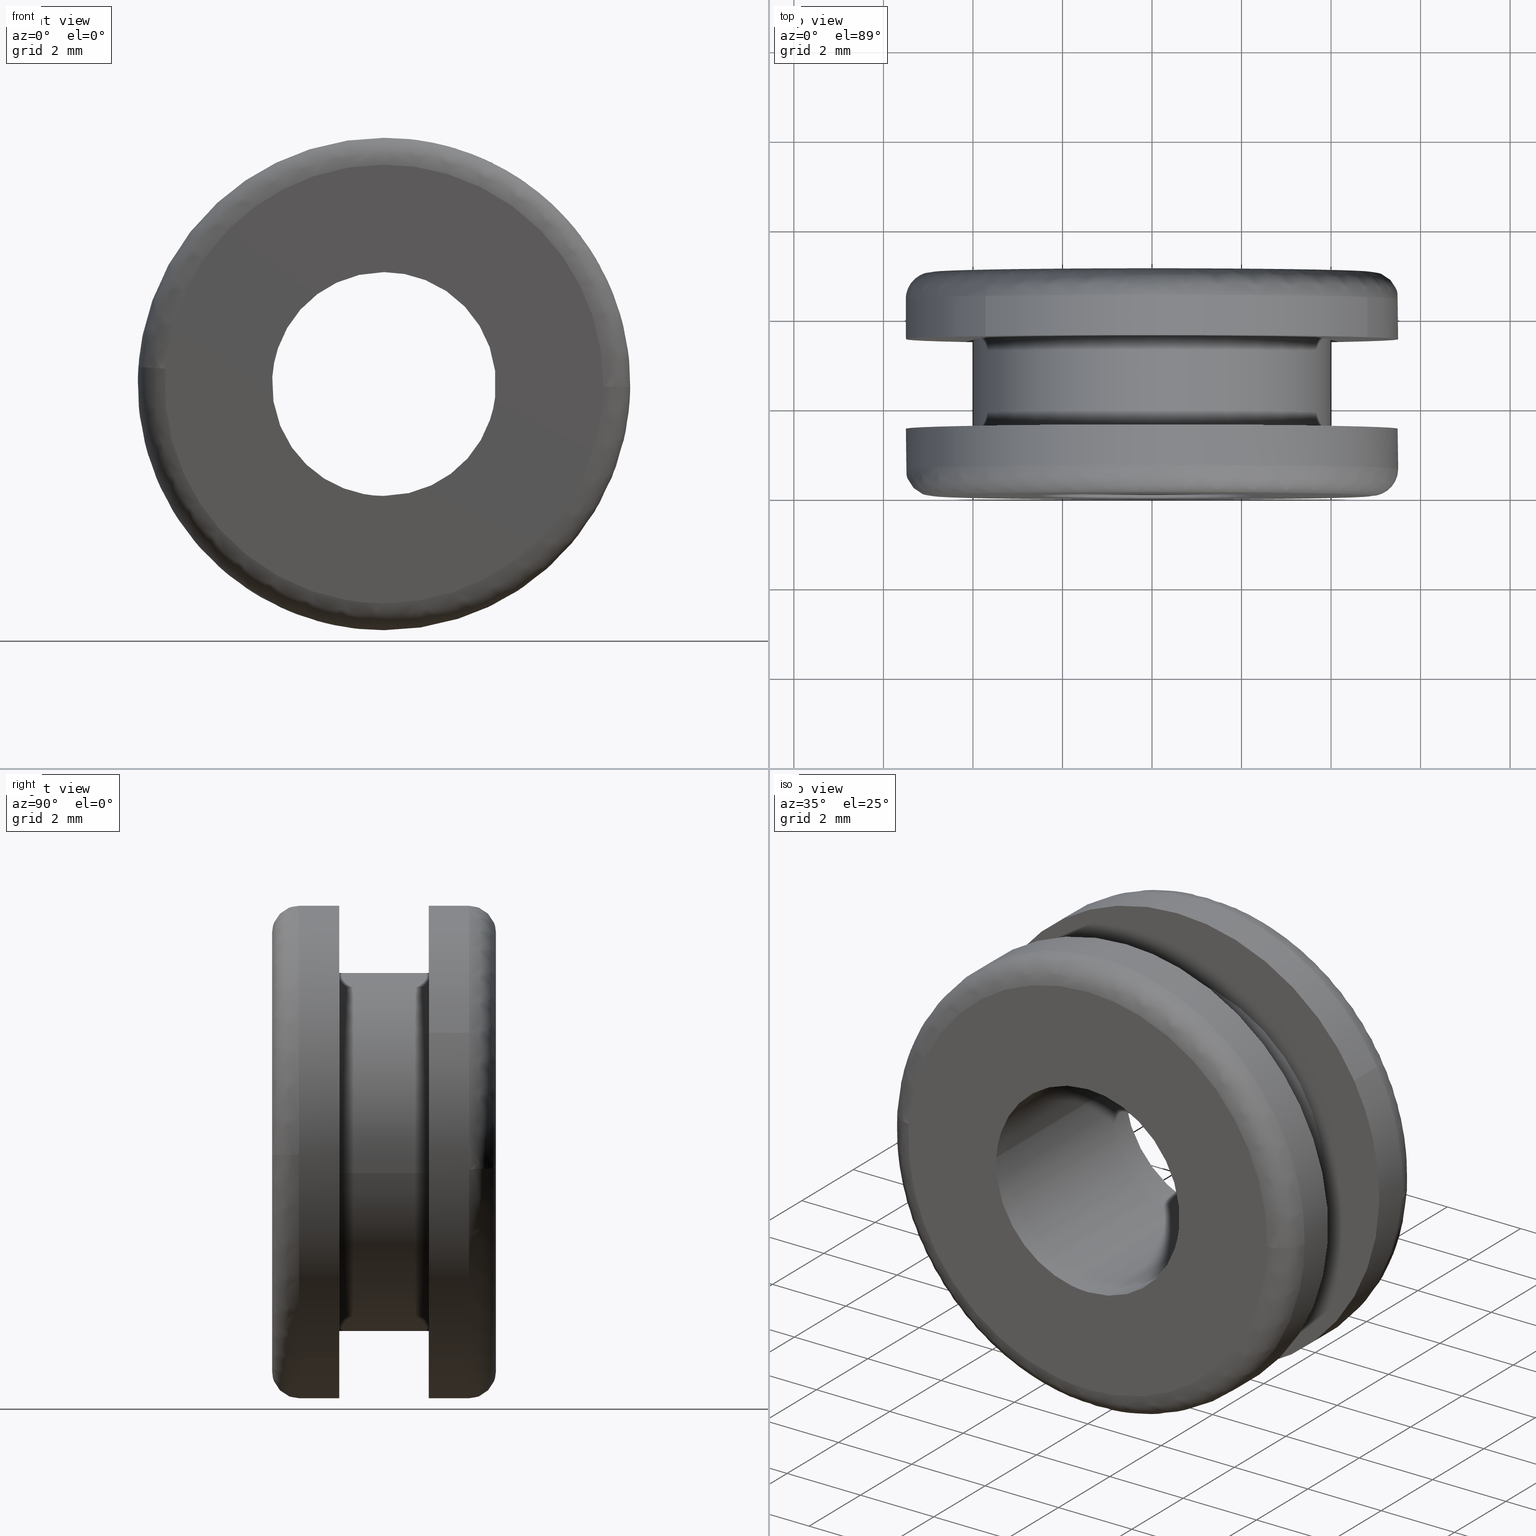
[diagram: canonical four-view strip — front | top / right | iso, engineering-drawing reading convention]
A machine part, canonical four-view strip (front | top / right | iso — engineering-drawing reading convention). The complete STEP part file that produces these views, byte-faithful:
ISO-10303-21;
HEADER;
/****************************************************************
 * Generated by software with PDE/Lib inside                    *
 * PDElib Version 4.4.1-0003, patched  Thursday August 19 11:58 *
 * International Technegroup Inc. (www.iti-oh.com)              *
 ****************************************************************/
FILE_DESCRIPTION((''),'2;1');
FILE_NAME('','2005-12-14T14:18:10',(''),(''),'','CADfix','');
FILE_SCHEMA(('AUTOMOTIVE_DESIGN'));
ENDSEC;
DATA;
#5=APPLICATION_CONTEXT('automotive design');
#6=APPLICATION_PROTOCOL_DEFINITION('Draft International Standard','automotive_design',1998,#5);
#7=PRODUCT_CONTEXT('None',#5,'mechanical');
#8=PRODUCT('grommet','','None',(#7));
#9=PRODUCT_RELATED_PRODUCT_CATEGORY('part','description',(#8));
#10=PRODUCT_DEFINITION_FORMATION('None','None',#8);
#11=PRODUCT_DEFINITION_CONTEXT('part definition',#5,'design');
#12=PRODUCT_DEFINITION('None','None',#10,#11);
#18=(NAMED_UNIT(*)PLANE_ANGLE_UNIT()SI_UNIT($,.RADIAN.));
#19=DIMENSIONAL_EXPONENTS(0.0,0.0,0.0,0.0,0.0,0.0,0.0);
#20=PLANE_ANGLE_MEASURE_WITH_UNIT(PLANE_ANGLE_MEASURE(0.017453292500000),#18);
#24=(CONVERSION_BASED_UNIT('DEGREE',#20)NAMED_UNIT(#19)PLANE_ANGLE_UNIT());
#28=(NAMED_UNIT(*)SI_UNIT($,.STERADIAN.)SOLID_ANGLE_UNIT());
#32=(LENGTH_UNIT()NAMED_UNIT(*)SI_UNIT(.MILLI.,.METRE.));
#34=UNCERTAINTY_MEASURE_WITH_UNIT(LENGTH_MEASURE(0.001000000000000),#32,'DISTANCE_ACCURACY_VALUE','');
#36=(GEOMETRIC_REPRESENTATION_CONTEXT(3)GLOBAL_UNCERTAINTY_ASSIGNED_CONTEXT((#34))GLOBAL_UNIT_ASSIGNED_CONTEXT((#24,#28,#32))REPRESENTATION_CONTEXT('None','None'));
#37=AXIS2_PLACEMENT_3D('',#38,#39,#40);
#38=CARTESIAN_POINT('',(0.0,0.0,0.0));
#39=DIRECTION('',(0.0,0.0,1.0));
#40=DIRECTION('',(1.0,0.0,0.0));
#41=ADVANCED_BREP_SHAPE_REPRESENTATION('',(#37,#1233),#36);
#42=PRODUCT_DEFINITION_SHAPE('','',#12);
#43=SHAPE_DEFINITION_REPRESENTATION(#42,#41);
#44=CARTESIAN_POINT('',(2.985008738409040,1.522500000000269,-4.619493785213013));
#45=CARTESIAN_POINT('',(3.252596745929994,1.522500000000269,-4.446584679176262));
#46=CARTESIAN_POINT('',(3.498430211527701,1.522500000000269,-4.243935208632458));
#47=CARTESIAN_POINT('',(7.742365420160159,1.522500000000269,-0.745504997104758));
#48=CARTESIAN_POINT('',(4.243935208632458,1.522500000000269,3.498430211527701));
#49=CARTESIAN_POINT('',(0.745504997104758,1.522500000000269,7.742365420160159));
#50=CARTESIAN_POINT('',(-3.498430211527701,1.522500000000269,4.243935208632458));
#51=CARTESIAN_POINT('',(-7.742365420160159,1.522500000000269,0.745504997104758));
#52=CARTESIAN_POINT('',(-4.243935208632458,1.522500000000269,-3.498430211527701));
#53=CARTESIAN_POINT('',(2.985008738409040,0.576937499988974,-4.619493785213013));
#54=CARTESIAN_POINT('',(3.252596745929994,0.576937499988974,-4.446584679176262));
#55=CARTESIAN_POINT('',(3.498430211527701,0.576937499988974,-4.243935208632458));
#56=CARTESIAN_POINT('',(7.742365420160159,0.576937499988974,-0.745504997104758));
#57=CARTESIAN_POINT('',(4.243935208632458,0.576937499988974,3.498430211527701));
#58=CARTESIAN_POINT('',(0.745504997104758,0.576937499988974,7.742365420160159));
#59=CARTESIAN_POINT('',(-3.498430211527701,0.576937499988974,4.243935208632458));
#60=CARTESIAN_POINT('',(-7.742365420160159,0.576937499988974,0.745504997104758));
#61=CARTESIAN_POINT('',(-4.243935208632458,0.576937499988974,-3.498430211527701));
#69=(BOUNDED_SURFACE()B_SPLINE_SURFACE(2,1,((#44,#53),(#45,#54),(#46,#55),(#47,#56),(#48,#57),(#49,#58),(#50,#59),(#51,#60),(#52,#61)),.UNSPECIFIED.,.F.,.F.,.U.)B_SPLINE_SURFACE_WITH_KNOTS((3,2,2,2,3),(2,2),(0.0,0.729015869776647,9.841714241984734,18.954412614192830,28.067110986400909),(0.0,1.0),.UNSPECIFIED.)GEOMETRIC_REPRESENTATION_ITEM()RATIONAL_B_SPLINE_SURFACE(((0.956886118190660,0.956886118190660),(0.976568542494924,0.976568542494924),(1.0,1.0),(0.707106781186548,0.707106781186548),(1.0,1.0),(0.707106781186548,0.707106781186548),(1.0,1.0),(0.707106781186548,0.707106781186548),(1.0,1.0)))REPRESENTATION_ITEM('')SURFACE());
#70=CARTESIAN_POINT('',(2.985007899875340,0.599999999998220,-4.619494327053410));
#71=VERTEX_POINT('',#70);
#72=CARTESIAN_POINT('',(5.499565743120951,0.599999999989269,-0.069113219361360));
#73=VERTEX_POINT('',#72);
#74=CARTESIAN_POINT('',(2.985007899875340,0.599999999998220,-4.619494327053409));
#75=CARTESIAN_POINT('',(5.462499466198922,0.599999999995085,-3.018598551696828));
#76=CARTESIAN_POINT('',(5.499565743120951,0.599999999989269,-0.069113219361360));
#84=(BOUNDED_CURVE()B_SPLINE_CURVE(2,(#74,#75,#76),.UNSPECIFIED.,.F.,.U.)B_SPLINE_CURVE_WITH_KNOTS((3,3),(0.092934687548090,0.247784295921542),.UNSPECIFIED.)CURVE()GEOMETRIC_REPRESENTATION_ITEM()RATIONAL_B_SPLINE_CURVE((0.863190132936235,0.816652436475567,0.994854295643583))REPRESENTATION_ITEM(''));
#85=EDGE_CURVE('',#71,#73,#84,.T.);
#86=ORIENTED_EDGE('',*,*,#85,.F.);
#87=CARTESIAN_POINT('',(2.985007905691947,1.500000000000000,-4.619494323295093));
#88=VERTEX_POINT('',#87);
#89=CARTESIAN_POINT('',(2.985007905691947,1.500000000000000,-4.619494323295093));
#90=CARTESIAN_POINT('',(2.985007899875340,0.599999999998220,-4.619494327053410));
#91=QUASI_UNIFORM_CURVE('',1,(#89,#90),.UNSPECIFIED.,.F.,.U.);
#92=EDGE_CURVE('',#88,#71,#91,.T.);
#93=ORIENTED_EDGE('',*,*,#92,.F.);
#94=CARTESIAN_POINT('',(0.0,1.500000000000000,5.500000000000000));
#95=VERTEX_POINT('',#94);
#96=CARTESIAN_POINT('',(2.985007905691948,1.500000000000000,-4.619494323295093));
#97=CARTESIAN_POINT('',(5.500000000000000,1.500000000000001,-2.994366594990551));
#98=CARTESIAN_POINT('',(5.500000000000000,1.500000000000000,-1.928755E-016));
#99=CARTESIAN_POINT('',(5.500000000000001,1.500000000000000,5.500000000000001));
#100=CARTESIAN_POINT('',(0.0,1.500000000000000,5.500000000000000));
#108=(BOUNDED_CURVE()B_SPLINE_CURVE(2,(#96,#97,#98,#99,#100),.UNSPECIFIED.,.F.,.U.)B_SPLINE_CURVE_WITH_KNOTS((3,2,3),(0.092934687932361,0.250000000000000,0.500000000000000),.UNSPECIFIED.)CURVE()GEOMETRIC_REPRESENTATION_ITEM()RATIONAL_B_SPLINE_CURVE((0.863190132705262,0.815986540738279,1.0,0.707106781186548,1.0))REPRESENTATION_ITEM(''));
#109=EDGE_CURVE('',#88,#95,#108,.T.);
#110=ORIENTED_EDGE('',*,*,#109,.T.);
#111=CARTESIAN_POINT('',(-4.243935634971063,1.500000000000000,-3.498429694337490));
#112=VERTEX_POINT('',#111);
#113=CARTESIAN_POINT('',(0.0,1.500000000000000,5.500000000000000));
#114=CARTESIAN_POINT('',(-5.500000000000001,1.500000000000000,5.500000000000001));
#115=CARTESIAN_POINT('',(-5.500000000000000,1.500000000000000,-1.928755E-016));
#116=CARTESIAN_POINT('',(-5.500000000000000,1.500000000000000,-1.974701019510161));
#117=CARTESIAN_POINT('',(-4.243935634971063,1.500000000000000,-3.498429694337489));
#125=(BOUNDED_CURVE()B_SPLINE_CURVE(2,(#113,#114,#115,#116,#117),.UNSPECIFIED.,.F.,.U.)B_SPLINE_CURVE_WITH_KNOTS((3,2,3),(0.500000000000000,0.750000000000000,0.860504588998465),.UNSPECIFIED.)CURVE()GEOMETRIC_REPRESENTATION_ITEM()RATIONAL_B_SPLINE_CURVE((1.0,0.707106781186548,1.0,0.870535820938328,0.855522729054526))REPRESENTATION_ITEM(''));
#126=EDGE_CURVE('',#95,#112,#125,.T.);
#127=ORIENTED_EDGE('',*,*,#126,.T.);
#128=CARTESIAN_POINT('',(-4.243935646368156,0.599999999999966,-3.498429680511704));
#129=VERTEX_POINT('',#128);
#130=CARTESIAN_POINT('',(-4.243935634971063,1.500000000000000,-3.498429694337490));
#131=CARTESIAN_POINT('',(-4.243935646368156,0.599999999999966,-3.498429680511704));
#132=QUASI_UNIFORM_CURVE('',1,(#130,#131),.UNSPECIFIED.,.F.,.U.);
#133=EDGE_CURVE('',#112,#129,#132,.T.);
#134=ORIENTED_EDGE('',*,*,#133,.T.);
#135=CARTESIAN_POINT('',(-5.486611206122207,0.599999999989249,0.383532883667368));
#136=VERTEX_POINT('',#135);
#137=CARTESIAN_POINT('',(-5.486611206122207,0.599999999989249,0.383532883667368));
#138=CARTESIAN_POINT('',(-5.500000000000000,0.599999999999979,0.192000137313359));
#139=CARTESIAN_POINT('',(-5.500000000000000,0.599999999999979,-1.928755E-016));
#140=CARTESIAN_POINT('',(-5.500000000000000,0.599999999999979,-1.974700999282679));
#141=CARTESIAN_POINT('',(-4.243935646368156,0.599999999999966,-3.498429680511704));
#149=(BOUNDED_CURVE()B_SPLINE_CURVE(2,(#137,#138,#139,#140,#141),.UNSPECIFIED.,.F.,.U.)B_SPLINE_CURVE_WITH_KNOTS((3,2,3),(0.737833686534982,0.750000000000000,0.860504588013077),.UNSPECIFIED.)CURVE()GEOMETRIC_REPRESENTATION_ITEM()RATIONAL_B_SPLINE_CURVE((0.972879876386744,0.985746277152549,1.0,0.870535822092782,0.855522729322274))REPRESENTATION_ITEM(''));
#150=EDGE_CURVE('',#136,#129,#149,.T.);
#151=ORIENTED_EDGE('',*,*,#150,.F.);
#152=CARTESIAN_POINT('',(0.0,0.599999999999979,5.500000000000000));
#153=VERTEX_POINT('',#152);
#154=CARTESIAN_POINT('',(0.0,0.599999999999979,5.500000000000000));
#155=CARTESIAN_POINT('',(-5.128952659961872,0.599999999999979,5.500000000000001));
#156=CARTESIAN_POINT('',(-5.486611206122207,0.599999999989249,0.383532883667368));
#164=(BOUNDED_CURVE()B_SPLINE_CURVE(2,(#154,#155,#156),.UNSPECIFIED.,.F.,.U.)B_SPLINE_CURVE_WITH_KNOTS((3,3),(0.500000000000000,0.737833686534983),.UNSPECIFIED.)CURVE()GEOMETRIC_REPRESENTATION_ITEM()RATIONAL_B_SPLINE_CURVE((1.0,0.721360504033997,0.972879876386746))REPRESENTATION_ITEM(''));
#165=EDGE_CURVE('',#153,#136,#164,.T.);
#166=ORIENTED_EDGE('',*,*,#165,.F.);
#167=CARTESIAN_POINT('',(5.499565743120951,0.599999999989269,-0.069113219361360));
#168=CARTESIAN_POINT('',(5.500000000000001,0.599999999999979,-0.034557973958315));
#169=CARTESIAN_POINT('',(5.500000000000000,0.599999999999979,-1.928755E-016));
#170=CARTESIAN_POINT('',(5.500000000000001,0.599999999999979,5.500000000000001));
#171=CARTESIAN_POINT('',(0.0,0.599999999999979,5.500000000000000));
#179=(BOUNDED_CURVE()B_SPLINE_CURVE(2,(#167,#168,#169,#170,#171),.UNSPECIFIED.,.F.,.U.)B_SPLINE_CURVE_WITH_KNOTS((3,2,3),(0.247784295921541,0.250000000000000,0.500000000000000),.UNSPECIFIED.)CURVE()GEOMETRIC_REPRESENTATION_ITEM()RATIONAL_B_SPLINE_CURVE((0.994854295643582,0.997404141202089,1.0,0.707106781186548,1.0))REPRESENTATION_ITEM(''));
#180=EDGE_CURVE('',#73,#153,#179,.T.);
#181=ORIENTED_EDGE('',*,*,#180,.F.);
#182=EDGE_LOOP('',(#86,#93,#110,#127,#134,#151,#166,#181));
#183=FACE_OUTER_BOUND('',#182,.T.);
#184=ADVANCED_FACE('',(#183),#69,.T.);
#185=CARTESIAN_POINT('',(-4.243935208632458,1.522500000000269,-3.498430211527701));
#186=CARTESIAN_POINT('',(-1.128612139344792,1.522500000000270,-7.277619293662170));
#187=CARTESIAN_POINT('',(2.985008738409040,1.522500000000269,-4.619493785213013));
#188=CARTESIAN_POINT('',(-4.243935208632458,0.576937499988974,-3.498430211527701));
#189=CARTESIAN_POINT('',(-1.128612139344792,0.576937499988974,-7.277619293662170));
#190=CARTESIAN_POINT('',(2.985008738409040,0.576937499988974,-4.619493785213013));
#198=(BOUNDED_SURFACE()B_SPLINE_SURFACE(2,1,((#185,#188),(#186,#189),(#187,#190)),.UNSPECIFIED.,.F.,.F.,.U.)B_SPLINE_SURFACE_WITH_KNOTS((3,3),(2,2),(0.0,8.374486759889559),(0.0,1.0),.UNSPECIFIED.)GEOMETRIC_REPRESENTATION_ITEM()RATIONAL_B_SPLINE_SURFACE(((1.0,1.0),(0.730538238691624,0.730538238691624),(0.956886118190660,0.956886118190660)))REPRESENTATION_ITEM('')SURFACE());
#199=CARTESIAN_POINT('',(0.0,0.599999999999979,-5.500000000000000));
#200=VERTEX_POINT('',#199);
#201=CARTESIAN_POINT('',(0.0,0.599999999999979,-5.500000000000000));
#202=CARTESIAN_POINT('',(1.622367425457560,0.599999999999979,-5.500000000000000));
#203=CARTESIAN_POINT('',(2.985007899875340,0.599999999998220,-4.619494327053409));
#211=(BOUNDED_CURVE()B_SPLINE_CURVE(2,(#201,#202,#203),.UNSPECIFIED.,.F.,.U.)B_SPLINE_CURVE_WITH_KNOTS((3,3),(0.0,0.092934687548090),.UNSPECIFIED.)CURVE()GEOMETRIC_REPRESENTATION_ITEM()RATIONAL_B_SPLINE_CURVE((1.0,0.891120240898469,0.863190132936235))REPRESENTATION_ITEM(''));
#212=EDGE_CURVE('',#200,#71,#211,.T.);
#213=ORIENTED_EDGE('',*,*,#212,.F.);
#214=CARTESIAN_POINT('',(-4.243935646368156,0.599999999999966,-3.498429680511704));
#215=CARTESIAN_POINT('',(-2.593969244496337,0.599999999999979,-5.500000000000001));
#216=CARTESIAN_POINT('',(0.0,0.599999999999979,-5.500000000000000));
#224=(BOUNDED_CURVE()B_SPLINE_CURVE(2,(#214,#215,#216),.UNSPECIFIED.,.F.,.U.)B_SPLINE_CURVE_WITH_KNOTS((3,3),(0.860504588013076,1.0),.UNSPECIFIED.)CURVE()GEOMETRIC_REPRESENTATION_ITEM()RATIONAL_B_SPLINE_CURVE((0.855522729322274,0.836570959093765,1.0))REPRESENTATION_ITEM(''));
#225=EDGE_CURVE('',#129,#200,#224,.T.);
#226=ORIENTED_EDGE('',*,*,#225,.F.);
#227=ORIENTED_EDGE('',*,*,#133,.F.);
#228=CARTESIAN_POINT('',(0.0,1.500000000000000,-5.500000000000000));
#229=VERTEX_POINT('',#228);
#230=CARTESIAN_POINT('',(-4.243935634971063,1.500000000000000,-3.498429694337489));
#231=CARTESIAN_POINT('',(-2.593969222593032,1.500000000000000,-5.500000000000002));
#232=CARTESIAN_POINT('',(0.0,1.500000000000000,-5.500000000000000));
#240=(BOUNDED_CURVE()B_SPLINE_CURVE(2,(#230,#231,#232),.UNSPECIFIED.,.F.,.U.)B_SPLINE_CURVE_WITH_KNOTS((3,3),(0.860504588998465,1.0),.UNSPECIFIED.)CURVE()GEOMETRIC_REPRESENTATION_ITEM()RATIONAL_B_SPLINE_CURVE((0.855522729054526,0.836570960248220,1.0))REPRESENTATION_ITEM(''));
#241=EDGE_CURVE('',#112,#229,#240,.T.);
#242=ORIENTED_EDGE('',*,*,#241,.T.);
#243=CARTESIAN_POINT('',(0.0,1.500000000000000,-5.500000000000000));
#244=CARTESIAN_POINT('',(1.622367432985426,1.500000000000000,-5.500000000000001));
#245=CARTESIAN_POINT('',(2.985007905691948,1.500000000000000,-4.619494323295093));
#253=(BOUNDED_CURVE()B_SPLINE_CURVE(2,(#243,#244,#245),.UNSPECIFIED.,.F.,.U.)B_SPLINE_CURVE_WITH_KNOTS((3,3),(0.0,0.092934687932361),.UNSPECIFIED.)CURVE()GEOMETRIC_REPRESENTATION_ITEM()RATIONAL_B_SPLINE_CURVE((1.0,0.891120240448269,0.863190132705262))REPRESENTATION_ITEM(''));
#254=EDGE_CURVE('',#229,#88,#253,.T.);
#255=ORIENTED_EDGE('',*,*,#254,.T.);
#256=ORIENTED_EDGE('',*,*,#92,.T.);
#257=EDGE_LOOP('',(#213,#226,#227,#242,#255,#256));
#258=FACE_OUTER_BOUND('',#257,.T.);
#259=ADVANCED_FACE('',(#258),#198,.T.);
#260=CARTESIAN_POINT('',(3.972038105454666,3.550000000000000,-0.472136938627034));
#261=CARTESIAN_POINT('',(3.985550461794422,3.550000000000001,-0.358458914551911));
#262=CARTESIAN_POINT('',(3.992539193687467,3.550000000000000,-0.244194158139428));
#263=CARTESIAN_POINT('',(4.236733351826894,3.550000000000000,3.748345035548039));
#264=CARTESIAN_POINT('',(0.244194158139428,3.550000000000000,3.992539193687467));
#265=CARTESIAN_POINT('',(-3.748345035548039,3.550000000000000,4.236733351826894));
#266=CARTESIAN_POINT('',(-3.992539193687467,3.550000000000000,0.244194158139428));
#267=CARTESIAN_POINT('',(3.972038105454666,1.448750000000000,-0.472136938627034));
#268=CARTESIAN_POINT('',(3.985550461794422,1.448750000000000,-0.358458914551911));
#269=CARTESIAN_POINT('',(3.992539193687467,1.448750000000000,-0.244194158139428));
#270=CARTESIAN_POINT('',(4.236733351826894,1.448750000000000,3.748345035548039));
#271=CARTESIAN_POINT('',(0.244194158139428,1.448750000000000,3.992539193687467));
#272=CARTESIAN_POINT('',(-3.748345035548039,1.448750000000000,4.236733351826894));
#273=CARTESIAN_POINT('',(-3.992539193687467,1.448750000000000,0.244194158139428));
#281=(BOUNDED_SURFACE()B_SPLINE_SURFACE(2,1,((#260,#267),(#261,#268),(#262,#269),(#263,#270),(#264,#271),(#265,#272),(#266,#273)),.UNSPECIFIED.,.F.,.F.,.U.)B_SPLINE_SURFACE_WITH_KNOTS((3,2,2,3),(2,2),(0.0,0.265096679918781,6.892513677888300,13.519930675857820),(0.0,2.101250000000000),.UNSPECIFIED.)GEOMETRIC_REPRESENTATION_ITEM()RATIONAL_B_SPLINE_SURFACE(((0.977505800795127,0.977505800795127),(0.988284271247462,0.988284271247462),(1.0,1.0),(0.707106781186548,0.707106781186548),(1.0,1.0),(0.707106781186548,0.707106781186548),(1.0,1.0)))REPRESENTATION_ITEM('')SURFACE());
#282=CARTESIAN_POINT('',(3.972038520572323,1.499999999999971,-0.472133446259905));
#283=VERTEX_POINT('',#282);
#284=CARTESIAN_POINT('',(0.0,1.500000000000000,4.0));
#285=VERTEX_POINT('',#284);
#286=CARTESIAN_POINT('',(3.972038520572323,1.499999999999971,-0.472133446259905));
#287=CARTESIAN_POINT('',(4.000000000000001,1.500000000000000,-0.236894713963877));
#288=CARTESIAN_POINT('',(4.0,1.500000000000000,-1.928755E-016));
#289=CARTESIAN_POINT('',(4.000000000000000,1.500000000000000,4.000000000000000));
#290=CARTESIAN_POINT('',(0.0,1.500000000000000,4.0));
#298=(BOUNDED_CURVE()B_SPLINE_CURVE(2,(#286,#287,#288,#289,#290),.UNSPECIFIED.,.F.,.U.)B_SPLINE_CURVE_WITH_KNOTS((3,2,3),(0.229562622109743,0.250000000000000,0.500000000000000),.UNSPECIFIED.)CURVE()GEOMETRIC_REPRESENTATION_ITEM()RATIONAL_B_SPLINE_CURVE((0.956027045438608,0.976056122422463,1.0,0.707106781186548,1.0))REPRESENTATION_ITEM(''));
#299=EDGE_CURVE('',#283,#285,#298,.T.);
#300=ORIENTED_EDGE('',*,*,#299,.F.);
#301=CARTESIAN_POINT('',(3.972038515447482,3.500000000000000,-0.472133489375300));
#302=VERTEX_POINT('',#301);
#303=CARTESIAN_POINT('',(3.972038515447482,3.500000000000000,-0.472133489375300));
#304=CARTESIAN_POINT('',(3.972038520572323,1.499999999999971,-0.472133446259905));
#305=QUASI_UNIFORM_CURVE('',1,(#303,#304),.UNSPECIFIED.,.F.,.U.);
#306=EDGE_CURVE('',#302,#283,#305,.T.);
#307=ORIENTED_EDGE('',*,*,#306,.F.);
#308=CARTESIAN_POINT('',(0.0,3.500000000000000,4.0));
#309=VERTEX_POINT('',#308);
#310=CARTESIAN_POINT('',(3.972038515447482,3.500000000000000,-0.472133489375300));
#311=CARTESIAN_POINT('',(4.0,3.500000000000001,-0.236894735749474));
#312=CARTESIAN_POINT('',(4.0,3.500000000000000,-1.928755E-016));
#313=CARTESIAN_POINT('',(4.000000000000000,3.499999999999999,4.000000000000000));
#314=CARTESIAN_POINT('',(0.0,3.500000000000000,4.0));
#322=(BOUNDED_CURVE()B_SPLINE_CURVE(2,(#310,#311,#312,#313,#314),.UNSPECIFIED.,.F.,.U.)B_SPLINE_CURVE_WITH_KNOTS((3,2,3),(0.229562620275259,0.250000000000000,0.500000000000000),.UNSPECIFIED.)CURVE()GEOMETRIC_REPRESENTATION_ITEM()RATIONAL_B_SPLINE_CURVE((0.956027041842938,0.976056120273231,1.0,0.707106781186548,1.0))REPRESENTATION_ITEM(''));
#323=EDGE_CURVE('',#302,#309,#322,.T.);
#324=ORIENTED_EDGE('',*,*,#323,.T.);
#325=CARTESIAN_POINT('',(-3.992539417849797,3.500000000000000,0.244190493062515));
#326=VERTEX_POINT('',#325);
#327=CARTESIAN_POINT('',(0.0,3.500000000000000,4.0));
#328=CARTESIAN_POINT('',(-3.762827728281775,3.499999999999999,4.0));
#329=CARTESIAN_POINT('',(-3.992539417849797,3.500000000000000,0.244190493062515));
#337=(BOUNDED_CURVE()B_SPLINE_CURVE(2,(#327,#328,#329),.UNSPECIFIED.,.F.,.U.)B_SPLINE_CURVE_WITH_KNOTS((3,3),(0.500000000000000,0.739333120636739),.UNSPECIFIED.)CURVE()GEOMETRIC_REPRESENTATION_ITEM()RATIONAL_B_SPLINE_CURVE((1.0,0.719603807712149,0.976072381143582))REPRESENTATION_ITEM(''));
#338=EDGE_CURVE('',#309,#326,#337,.T.);
#339=ORIENTED_EDGE('',*,*,#338,.T.);
#340=CARTESIAN_POINT('',(-3.992539420651863,1.499999999999971,0.244190447247758));
#341=VERTEX_POINT('',#340);
#342=CARTESIAN_POINT('',(-3.992539417849797,3.500000000000000,0.244190493062515));
#343=CARTESIAN_POINT('',(-3.992539420651863,1.499999999999971,0.244190447247758));
#344=QUASI_UNIFORM_CURVE('',1,(#342,#343),.UNSPECIFIED.,.F.,.U.);
#345=EDGE_CURVE('',#326,#341,#344,.T.);
#346=ORIENTED_EDGE('',*,*,#345,.T.);
#347=CARTESIAN_POINT('',(0.0,1.500000000000000,4.0));
#348=CARTESIAN_POINT('',(-3.762827771541254,1.500000000000001,4.000000000000000));
#349=CARTESIAN_POINT('',(-3.992539420651863,1.499999999999971,0.244190447247758));
#357=(BOUNDED_CURVE()B_SPLINE_CURVE(2,(#347,#348,#349),.UNSPECIFIED.,.F.,.U.)B_SPLINE_CURVE_WITH_KNOTS((3,3),(0.500000000000000,0.739333122616730),.UNSPECIFIED.)CURVE()GEOMETRIC_REPRESENTATION_ITEM()RATIONAL_B_SPLINE_CURVE((1.0,0.719603805392445,0.976072385387086))REPRESENTATION_ITEM(''));
#358=EDGE_CURVE('',#285,#341,#357,.T.);
#359=ORIENTED_EDGE('',*,*,#358,.F.);
#360=EDGE_LOOP('',(#300,#307,#324,#339,#346,#359));
#361=FACE_OUTER_BOUND('',#360,.T.);
#362=ADVANCED_FACE('',(#361),#281,.T.);
#363=CARTESIAN_POINT('',(-3.992539193687467,3.550000000000000,0.244194158139428));
#364=CARTESIAN_POINT('',(-4.236733351826894,3.550000000000000,-3.748345035548039));
#365=CARTESIAN_POINT('',(-0.244194158139428,3.550000000000000,-3.992539193687467));
#366=CARTESIAN_POINT('',(3.526173963358004,3.550000000000000,-4.223144786930110));
#367=CARTESIAN_POINT('',(3.972038105454666,3.550000000000000,-0.472136938627034));
#368=CARTESIAN_POINT('',(-3.992539193687467,1.448750000000000,0.244194158139428));
#369=CARTESIAN_POINT('',(-4.236733351826894,1.448750000000000,-3.748345035548039));
#370=CARTESIAN_POINT('',(-0.244194158139428,1.448750000000000,-3.992539193687467));
#371=CARTESIAN_POINT('',(3.526173963358004,1.448749999999999,-4.223144786930110));
#372=CARTESIAN_POINT('',(3.972038105454666,1.448750000000000,-0.472136938627034));
#380=(BOUNDED_SURFACE()B_SPLINE_SURFACE(2,1,((#363,#368),(#364,#369),(#365,#370),(#366,#371),(#367,#372)),.UNSPECIFIED.,.F.,.F.,.U.)B_SPLINE_SURFACE_WITH_KNOTS((3,2,3),(2,2),(0.0,6.627416997969518,12.989737316020260),(0.0,2.101250000000000),.UNSPECIFIED.)GEOMETRIC_REPRESENTATION_ITEM()RATIONAL_B_SPLINE_SURFACE(((1.0,1.0),(0.707106781186548,0.707106781186548),(1.0,1.0),(0.718822509939086,0.718822509939086),(0.977505800795127,0.977505800795127)))REPRESENTATION_ITEM('')SURFACE());
#381=CARTESIAN_POINT('',(0.0,1.500000000000000,-4.0));
#382=VERTEX_POINT('',#381);
#383=CARTESIAN_POINT('',(0.0,1.500000000000000,-4.0));
#384=CARTESIAN_POINT('',(3.552701249463437,1.500000000000000,-4.000000000000001));
#385=CARTESIAN_POINT('',(3.972038520572323,1.499999999999971,-0.472133446259905));
#393=(BOUNDED_CURVE()B_SPLINE_CURVE(2,(#383,#384,#385),.UNSPECIFIED.,.F.,.U.)B_SPLINE_CURVE_WITH_KNOTS((3,3),(0.0,0.229562622109743),.UNSPECIFIED.)CURVE()GEOMETRIC_REPRESENTATION_ITEM()RATIONAL_B_SPLINE_CURVE((1.0,0.731050658764084,0.956027045438608))REPRESENTATION_ITEM(''));
#394=EDGE_CURVE('',#382,#283,#393,.T.);
#395=ORIENTED_EDGE('',*,*,#394,.F.);
#396=CARTESIAN_POINT('',(-3.992539420651863,1.499999999999971,0.244190447247758));
#397=CARTESIAN_POINT('',(-4.0,1.500000000000000,0.122209192546162));
#398=CARTESIAN_POINT('',(-4.0,1.500000000000000,-1.928755E-016));
#399=CARTESIAN_POINT('',(-4.000000000000000,1.500000000000000,-4.000000000000000));
#400=CARTESIAN_POINT('',(0.0,1.500000000000000,-4.0));
#408=(BOUNDED_CURVE()B_SPLINE_CURVE(2,(#396,#397,#398,#399,#400),.UNSPECIFIED.,.F.,.U.)B_SPLINE_CURVE_WITH_KNOTS((3,2,3),(0.739333122616730,0.750000000000000,1.0),.UNSPECIFIED.)CURVE()GEOMETRIC_REPRESENTATION_ITEM()RATIONAL_B_SPLINE_CURVE((0.976072385387086,0.987502975794103,1.0,0.707106781186548,1.0))REPRESENTATION_ITEM(''));
#409=EDGE_CURVE('',#341,#382,#408,.T.);
#410=ORIENTED_EDGE('',*,*,#409,.F.);
#411=ORIENTED_EDGE('',*,*,#345,.F.);
#412=CARTESIAN_POINT('',(0.0,3.500000000000000,-4.0));
#413=VERTEX_POINT('',#412);
#414=CARTESIAN_POINT('',(-3.992539417849797,3.500000000000000,0.244190493062515));
#415=CARTESIAN_POINT('',(-4.000000000000000,3.500000000000000,0.122209215517769));
#416=CARTESIAN_POINT('',(-4.0,3.500000000000000,-1.928755E-016));
#417=CARTESIAN_POINT('',(-4.000000000000000,3.499999999999999,-4.000000000000000));
#418=CARTESIAN_POINT('',(0.0,3.500000000000000,-4.0));
#426=(BOUNDED_CURVE()B_SPLINE_CURVE(2,(#414,#415,#416,#417,#418),.UNSPECIFIED.,.F.,.U.)B_SPLINE_CURVE_WITH_KNOTS((3,2,3),(0.739333120636739,0.750000000000000,1.0),.UNSPECIFIED.)CURVE()GEOMETRIC_REPRESENTATION_ITEM()RATIONAL_B_SPLINE_CURVE((0.976072381143582,0.987502973474399,1.0,0.707106781186548,1.0))REPRESENTATION_ITEM(''));
#427=EDGE_CURVE('',#326,#413,#426,.T.);
#428=ORIENTED_EDGE('',*,*,#427,.T.);
#429=CARTESIAN_POINT('',(0.0,3.500000000000000,-4.0));
#430=CARTESIAN_POINT('',(3.552701210628366,3.500000000000000,-4.000000000000000));
#431=CARTESIAN_POINT('',(3.972038515447482,3.500000000000000,-0.472133489375300));
#439=(BOUNDED_CURVE()B_SPLINE_CURVE(2,(#429,#430,#431),.UNSPECIFIED.,.F.,.U.)B_SPLINE_CURVE_WITH_KNOTS((3,3),(0.0,0.229562620275259),.UNSPECIFIED.)CURVE()GEOMETRIC_REPRESENTATION_ITEM()RATIONAL_B_SPLINE_CURVE((1.0,0.731050660913317,0.956027041842938))REPRESENTATION_ITEM(''));
#440=EDGE_CURVE('',#413,#302,#439,.T.);
#441=ORIENTED_EDGE('',*,*,#440,.T.);
#442=ORIENTED_EDGE('',*,*,#306,.T.);
#443=EDGE_LOOP('',(#395,#410,#411,#428,#441,#442));
#444=FACE_OUTER_BOUND('',#443,.T.);
#445=ADVANCED_FACE('',(#444),#380,.T.);
#446=CARTESIAN_POINT('',(4.812205350937217,4.422500000028186,2.663208527399086));
#447=CARTESIAN_POINT('',(4.496083300651819,4.422500000028186,3.234415853555515));
#448=CARTESIAN_POINT('',(4.055025352455680,4.422500000028186,3.715746141886131));
#449=CARTESIAN_POINT('',(0.339279210569550,4.422500000028186,7.770771494341811));
#450=CARTESIAN_POINT('',(-3.715746141886131,4.422500000028186,4.055025352455680));
#451=CARTESIAN_POINT('',(4.812205350937217,3.476937499999294,2.663208527399086));
#452=CARTESIAN_POINT('',(4.496083300651819,3.476937499999295,3.234415853555515));
#453=CARTESIAN_POINT('',(4.055025352455680,3.476937499999295,3.715746141886131));
#454=CARTESIAN_POINT('',(0.339279210569550,3.476937499999295,7.770771494341811));
#455=CARTESIAN_POINT('',(-3.715746141886131,3.476937499999295,4.055025352455680));
#463=(BOUNDED_SURFACE()B_SPLINE_SURFACE(2,1,((#446,#451),(#447,#452),(#448,#453),(#449,#454),(#450,#455)),.UNSPECIFIED.,.F.,.F.,.U.)B_SPLINE_SURFACE_WITH_KNOTS((3,2,3),(2,2),(0.0,1.458031739553296,10.570730111761380),(0.0,1.0),.UNSPECIFIED.)GEOMETRIC_REPRESENTATION_ITEM()RATIONAL_B_SPLINE_SURFACE(((0.921270302782944,0.921270302782944),(0.953137084989848,0.953137084989848),(1.0,1.0),(0.707106781186548,0.707106781186548),(1.0,1.0)))REPRESENTATION_ITEM('')SURFACE());
#464=CARTESIAN_POINT('',(4.812205843439302,4.400000000000018,2.663207637486718));
#465=VERTEX_POINT('',#464);
#466=CARTESIAN_POINT('',(0.0,4.400000000000000,5.500000000000000));
#467=VERTEX_POINT('',#466);
#468=CARTESIAN_POINT('',(4.812205843439302,4.400000000000018,2.663207637486718));
#469=CARTESIAN_POINT('',(3.242246591569628,4.400000000000000,5.500000000000001));
#470=CARTESIAN_POINT('',(0.0,4.400000000000000,5.500000000000000));
#478=(BOUNDED_CURVE()B_SPLINE_CURVE(2,(#468,#469,#470),.UNSPECIFIED.,.F.,.U.)B_SPLINE_CURVE_WITH_KNOTS((3,3),(0.332484260513294,0.500000000000000),.UNSPECIFIED.)CURVE()GEOMETRIC_REPRESENTATION_ITEM()RATIONAL_B_SPLINE_CURVE((0.870495160132448,0.803743103439292,1.0))REPRESENTATION_ITEM(''));
#479=EDGE_CURVE('',#465,#467,#478,.T.);
#480=ORIENTED_EDGE('',*,*,#479,.T.);
#481=CARTESIAN_POINT('',(-3.715745918085256,4.400000000007310,4.055025557530997));
#482=VERTEX_POINT('',#481);
#483=CARTESIAN_POINT('',(0.0,4.400000000000000,5.500000000000000));
#484=CARTESIAN_POINT('',(-2.138832675736071,4.400000000000001,5.500000000000000));
#485=CARTESIAN_POINT('',(-3.715745918085256,4.400000000007311,4.055025557530997));
#493=(BOUNDED_CURVE()B_SPLINE_CURVE(2,(#483,#484,#485),.UNSPECIFIED.,.F.,.U.)B_SPLINE_CURVE_WITH_KNOTS((3,3),(0.500000000000000,0.618415192420787),.UNSPECIFIED.)CURVE()GEOMETRIC_REPRESENTATION_ITEM()RATIONAL_B_SPLINE_CURVE((1.0,0.861267972541846,0.853959782894757))REPRESENTATION_ITEM(''));
#494=EDGE_CURVE('',#467,#482,#493,.T.);
#495=ORIENTED_EDGE('',*,*,#494,.T.);
#496=CARTESIAN_POINT('',(-3.715745924040497,3.500000000000000,4.055025552074405));
#497=VERTEX_POINT('',#496);
#498=CARTESIAN_POINT('',(-3.715745918085256,4.400000000007310,4.055025557530997));
#499=CARTESIAN_POINT('',(-3.715745924040497,3.500000000000000,4.055025552074405));
#500=QUASI_UNIFORM_CURVE('',1,(#498,#499),.UNSPECIFIED.,.F.,.U.);
#501=EDGE_CURVE('',#482,#497,#500,.T.);
#502=ORIENTED_EDGE('',*,*,#501,.T.);
#503=CARTESIAN_POINT('',(0.0,3.500000000000000,5.500000000000000));
#504=VERTEX_POINT('',#503);
#505=CARTESIAN_POINT('',(0.0,3.500000000000000,5.500000000000000));
#506=CARTESIAN_POINT('',(-2.138832685034934,3.500000000000000,5.500000000000000));
#507=CARTESIAN_POINT('',(-3.715745924040497,3.500000000000000,4.055025552074405));
#515=(BOUNDED_CURVE()B_SPLINE_CURVE(2,(#505,#506,#507),.UNSPECIFIED.,.F.,.U.)B_SPLINE_CURVE_WITH_KNOTS((3,3),(0.500000000000000,0.618415192864190),.UNSPECIFIED.)CURVE()GEOMETRIC_REPRESENTATION_ITEM()RATIONAL_B_SPLINE_CURVE((1.0,0.861267972022367,0.853959782840026))REPRESENTATION_ITEM(''));
#516=EDGE_CURVE('',#504,#497,#515,.T.);
#517=ORIENTED_EDGE('',*,*,#516,.F.);
#518=CARTESIAN_POINT('',(4.812205804631674,3.500000000000000,2.663207707609066));
#519=VERTEX_POINT('',#518);
#520=CARTESIAN_POINT('',(4.812205804631675,3.500000000000000,2.663207707609067));
#521=CARTESIAN_POINT('',(3.242247168853135,3.499999999999999,5.499999999999999));
#522=CARTESIAN_POINT('',(0.0,3.500000000000000,5.500000000000000));
#530=(BOUNDED_CURVE()B_SPLINE_CURVE(2,(#520,#521,#522),.UNSPECIFIED.,.F.,.U.)B_SPLINE_CURVE_WITH_KNOTS((3,3),(0.332484236540648,0.500000000000000),.UNSPECIFIED.)CURVE()GEOMETRIC_REPRESENTATION_ITEM()RATIONAL_B_SPLINE_CURVE((0.870495179237803,0.803743075353590,1.0))REPRESENTATION_ITEM(''));
#531=EDGE_CURVE('',#519,#504,#530,.T.);
#532=ORIENTED_EDGE('',*,*,#531,.F.);
#533=CARTESIAN_POINT('',(4.812205843439302,4.400000000000018,2.663207637486718));
#534=CARTESIAN_POINT('',(4.812205804631674,3.500000000000000,2.663207707609066));
#535=QUASI_UNIFORM_CURVE('',1,(#533,#534),.UNSPECIFIED.,.F.,.U.);
#536=EDGE_CURVE('',#465,#519,#535,.T.);
#537=ORIENTED_EDGE('',*,*,#536,.F.);
#538=EDGE_LOOP('',(#480,#495,#502,#517,#532,#537));
#539=FACE_OUTER_BOUND('',#538,.T.);
#540=ADVANCED_FACE('',(#539),#463,.T.);
#541=CARTESIAN_POINT('',(-3.715746141886131,4.422500000028186,4.055025352455680));
#542=CARTESIAN_POINT('',(-7.770771494341811,4.422500000028186,0.339279210569550));
#543=CARTESIAN_POINT('',(-4.055025352455680,4.422500000028186,-3.715746141886131));
#544=CARTESIAN_POINT('',(-0.339279210569550,4.422500000028186,-7.770771494341811));
#545=CARTESIAN_POINT('',(3.715746141886131,4.422500000028186,-4.055025352455680));
#546=CARTESIAN_POINT('',(6.910254076114374,4.422500000028187,-1.127798146676340));
#547=CARTESIAN_POINT('',(4.812205350937217,4.422500000028186,2.663208527399086));
#548=CARTESIAN_POINT('',(-3.715746141886131,3.476937499999295,4.055025352455680));
#549=CARTESIAN_POINT('',(-7.770771494341811,3.476937499999295,0.339279210569550));
#550=CARTESIAN_POINT('',(-4.055025352455680,3.476937499999295,-3.715746141886131));
#551=CARTESIAN_POINT('',(-0.339279210569550,3.476937499999295,-7.770771494341811));
#552=CARTESIAN_POINT('',(3.715746141886131,3.476937499999295,-4.055025352455680));
#553=CARTESIAN_POINT('',(6.910254076114374,3.476937499999294,-1.127798146676340));
#554=CARTESIAN_POINT('',(4.812205350937217,3.476937499999294,2.663208527399086));
#562=(BOUNDED_SURFACE()B_SPLINE_SURFACE(2,1,((#541,#548),(#542,#549),(#543,#550),(#544,#551),(#545,#552),(#546,#553),(#547,#554)),.UNSPECIFIED.,.F.,.F.,.U.)B_SPLINE_SURFACE_WITH_KNOTS((3,2,2,3),(2,2),(0.0,9.112698372208087,18.225396744416170,25.880063377070961),(0.0,1.0),.UNSPECIFIED.)GEOMETRIC_REPRESENTATION_ITEM()RATIONAL_B_SPLINE_SURFACE(((1.0,1.0),(0.707106781186548,0.707106781186548),(1.0,1.0),(0.707106781186548,0.707106781186548),(1.0,1.0),(0.753969696196700,0.753969696196700),(0.921270302782944,0.921270302782944)))REPRESENTATION_ITEM('')SURFACE());
#563=CARTESIAN_POINT('',(5.486611206122208,4.400000000027498,-0.383532883667365));
#564=VERTEX_POINT('',#563);
#565=CARTESIAN_POINT('',(5.486611206122208,4.400000000027498,-0.383532883667365));
#566=CARTESIAN_POINT('',(5.499999999999999,4.400000000000001,-0.192000137313358));
#567=CARTESIAN_POINT('',(5.500000000000000,4.400000000000000,-1.928755E-016));
#568=CARTESIAN_POINT('',(5.500000000000000,4.400000000000000,1.420417923047572));
#569=CARTESIAN_POINT('',(4.812205843439302,4.400000000000018,2.663207637486718));
#577=(BOUNDED_CURVE()B_SPLINE_CURVE(2,(#565,#566,#567,#568,#569),.UNSPECIFIED.,.F.,.U.)B_SPLINE_CURVE_WITH_KNOTS((3,2,3),(0.237833686534982,0.250000000000000,0.332484260513294),.UNSPECIFIED.)CURVE()GEOMETRIC_REPRESENTATION_ITEM()RATIONAL_B_SPLINE_CURVE((0.972879876386744,0.985746277152550,1.0,0.903363677747256,0.870495160132448))REPRESENTATION_ITEM(''));
#578=EDGE_CURVE('',#564,#465,#577,.T.);
#579=ORIENTED_EDGE('',*,*,#578,.T.);
#580=ORIENTED_EDGE('',*,*,#536,.T.);
#581=CARTESIAN_POINT('',(0.0,3.500000000000000,-5.500000000000000));
#582=VERTEX_POINT('',#581);
#583=CARTESIAN_POINT('',(0.0,3.500000000000000,-5.500000000000000));
#584=CARTESIAN_POINT('',(5.500000000000001,3.499999999999999,-5.500000000000001));
#585=CARTESIAN_POINT('',(5.500000000000000,3.500000000000000,-1.928755E-016));
#586=CARTESIAN_POINT('',(5.500000000000001,3.500000000000000,1.420417466066309));
#587=CARTESIAN_POINT('',(4.812205804631675,3.500000000000000,2.663207707609067));
#595=(BOUNDED_CURVE()B_SPLINE_CURVE(2,(#583,#584,#585,#586,#587),.UNSPECIFIED.,.F.,.U.)B_SPLINE_CURVE_WITH_KNOTS((3,2,3),(0.0,0.250000000000000,0.332484236540648),.UNSPECIFIED.)CURVE()GEOMETRIC_REPRESENTATION_ITEM()RATIONAL_B_SPLINE_CURVE((1.0,0.707106781186548,1.0,0.903363705832958,0.870495179237803))REPRESENTATION_ITEM(''));
#596=EDGE_CURVE('',#582,#519,#595,.T.);
#597=ORIENTED_EDGE('',*,*,#596,.F.);
#598=CARTESIAN_POINT('',(-3.715745924040497,3.500000000000000,4.055025552074405));
#599=CARTESIAN_POINT('',(-5.499999999999999,3.500000000000000,2.420058272584527));
#600=CARTESIAN_POINT('',(-5.500000000000000,3.500000000000000,-1.928755E-016));
#601=CARTESIAN_POINT('',(-5.500000000000001,3.499999999999999,-5.500000000000001));
#602=CARTESIAN_POINT('',(0.0,3.500000000000000,-5.500000000000000));
#610=(BOUNDED_CURVE()B_SPLINE_CURVE(2,(#598,#599,#600,#601,#602),.UNSPECIFIED.,.F.,.U.)B_SPLINE_CURVE_WITH_KNOTS((3,2,3),(0.618415192864190,0.750000000000000,1.0),.UNSPECIFIED.)CURVE()GEOMETRIC_REPRESENTATION_ITEM()RATIONAL_B_SPLINE_CURVE((0.853959782840026,0.845838809164181,1.0,0.707106781186548,1.0))REPRESENTATION_ITEM(''));
#611=EDGE_CURVE('',#497,#582,#610,.T.);
#612=ORIENTED_EDGE('',*,*,#611,.F.);
#613=ORIENTED_EDGE('',*,*,#501,.F.);
#614=CARTESIAN_POINT('',(-5.499565743120951,4.400000000027498,0.069113219361356));
#615=VERTEX_POINT('',#614);
#616=CARTESIAN_POINT('',(-3.715745918085256,4.400000000007311,4.055025557530997));
#617=CARTESIAN_POINT('',(-5.469672098197592,4.400000000015454,2.447848677929653));
#618=CARTESIAN_POINT('',(-5.499565743120951,4.400000000027498,0.069113219361356));
#626=(BOUNDED_CURVE()B_SPLINE_CURVE(2,(#616,#617,#618),.UNSPECIFIED.,.F.,.U.)B_SPLINE_CURVE_WITH_KNOTS((3,3),(0.618415192420787,0.747784295921543),.UNSPECIFIED.)CURVE()GEOMETRIC_REPRESENTATION_ITEM()RATIONAL_B_SPLINE_CURVE((0.853959782894757,0.845975554490198,0.994854295643585))REPRESENTATION_ITEM(''));
#627=EDGE_CURVE('',#482,#615,#626,.T.);
#628=ORIENTED_EDGE('',*,*,#627,.T.);
#629=CARTESIAN_POINT('',(0.0,4.400000000000000,-5.500000000000000));
#630=VERTEX_POINT('',#629);
#631=CARTESIAN_POINT('',(-5.499565743120951,4.400000000027498,0.069113219361356));
#632=CARTESIAN_POINT('',(-5.500000000000000,4.400000000000000,0.034557973958313));
#633=CARTESIAN_POINT('',(-5.500000000000000,4.400000000000000,-1.928755E-016));
#634=CARTESIAN_POINT('',(-5.500000000000001,4.400000000000001,-5.500000000000001));
#635=CARTESIAN_POINT('',(0.0,4.400000000000000,-5.500000000000000));
#643=(BOUNDED_CURVE()B_SPLINE_CURVE(2,(#631,#632,#633,#634,#635),.UNSPECIFIED.,.F.,.U.)B_SPLINE_CURVE_WITH_KNOTS((3,2,3),(0.747784295921542,0.750000000000000,1.0),.UNSPECIFIED.)CURVE()GEOMETRIC_REPRESENTATION_ITEM()RATIONAL_B_SPLINE_CURVE((0.994854295643583,0.997404141202089,1.0,0.707106781186548,1.0))REPRESENTATION_ITEM(''));
#644=EDGE_CURVE('',#615,#630,#643,.T.);
#645=ORIENTED_EDGE('',*,*,#644,.T.);
#646=CARTESIAN_POINT('',(0.0,4.400000000000000,-5.500000000000000));
#647=CARTESIAN_POINT('',(5.128952659961843,4.400000000000001,-5.500000000000000));
#648=CARTESIAN_POINT('',(5.486611206122208,4.400000000027498,-0.383532883667365));
#656=(BOUNDED_CURVE()B_SPLINE_CURVE(2,(#646,#647,#648),.UNSPECIFIED.,.F.,.U.)B_SPLINE_CURVE_WITH_KNOTS((3,3),(0.0,0.237833686534982),.UNSPECIFIED.)CURVE()GEOMETRIC_REPRESENTATION_ITEM()RATIONAL_B_SPLINE_CURVE((1.0,0.721360504033998,0.972879876386744))REPRESENTATION_ITEM(''));
#657=EDGE_CURVE('',#630,#564,#656,.T.);
#658=ORIENTED_EDGE('',*,*,#657,.T.);
#659=EDGE_LOOP('',(#579,#580,#597,#612,#613,#628,#645,#658));
#660=FACE_OUTER_BOUND('',#659,.T.);
#661=ADVANCED_FACE('',(#660),#562,.T.);
#662=CARTESIAN_POINT('',(2.482523815909166,5.125000000000002,-0.295085586641896));
#663=CARTESIAN_POINT('',(2.490969038621514,5.125000000000001,-0.224036821594944));
#664=CARTESIAN_POINT('',(2.495336996054667,5.125000000000001,-0.152621348837143));
#665=CARTESIAN_POINT('',(2.647958344891809,5.125000000000001,2.342715647217524));
#666=CARTESIAN_POINT('',(0.152621348837143,5.125000000000001,2.495336996054667));
#667=CARTESIAN_POINT('',(-2.342715647217524,5.125000000000001,2.647958344891809));
#668=CARTESIAN_POINT('',(-2.495336996054667,5.125000000000001,0.152621348837142));
#669=CARTESIAN_POINT('',(2.482523815909166,-0.128125000000001,-0.295085586641896));
#670=CARTESIAN_POINT('',(2.490969038621514,-0.128125000000001,-0.224036821594944));
#671=CARTESIAN_POINT('',(2.495336996054667,-0.128125000000001,-0.152621348837143));
#672=CARTESIAN_POINT('',(2.647958344891809,-0.128125000000001,2.342715647217524));
#673=CARTESIAN_POINT('',(0.152621348837143,-0.128125000000001,2.495336996054667));
#674=CARTESIAN_POINT('',(-2.342715647217524,-0.128125000000001,2.647958344891809));
#675=CARTESIAN_POINT('',(-2.495336996054667,-0.128125000000001,0.152621348837142));
#683=(BOUNDED_SURFACE()B_SPLINE_SURFACE(2,1,((#662,#669),(#663,#670),(#664,#671),(#665,#672),(#666,#673),(#667,#674),(#668,#675)),.UNSPECIFIED.,.F.,.F.,.U.)B_SPLINE_SURFACE_WITH_KNOTS((3,2,2,3),(2,2),(0.0,0.165685424949238,4.307821048680188,8.449956672411137),(0.0,5.253125000000002),.UNSPECIFIED.)GEOMETRIC_REPRESENTATION_ITEM()RATIONAL_B_SPLINE_SURFACE(((0.977505800795127,0.977505800795127),(0.988284271247462,0.988284271247462),(1.0,1.0),(0.707106781186548,0.707106781186548),(1.0,1.0),(0.707106781186548,0.707106781186548),(1.0,1.0)))REPRESENTATION_ITEM('')SURFACE());
#684=CARTESIAN_POINT('',(2.482524208177017,4.999999999999985,-0.295082286496545));
#685=VERTEX_POINT('',#684);
#686=CARTESIAN_POINT('',(0.0,5.0,2.500000000000000));
#687=VERTEX_POINT('',#686);
#688=CARTESIAN_POINT('',(2.482524208177017,4.999999999999985,-0.295082286496545));
#689=CARTESIAN_POINT('',(2.500000000000000,5.0,-0.148058631613071));
#690=CARTESIAN_POINT('',(2.500000000000000,5.0,-1.928755E-016));
#691=CARTESIAN_POINT('',(2.500000000000000,5.000000000000001,2.500000000000000));
#692=CARTESIAN_POINT('',(0.0,5.0,2.500000000000000));
#700=(BOUNDED_CURVE()B_SPLINE_CURVE(2,(#688,#689,#690,#691,#692),.UNSPECIFIED.,.F.,.U.)B_SPLINE_CURVE_WITH_KNOTS((3,2,3),(0.229562698180289,0.250000000000000,0.500000000000000),.UNSPECIFIED.)CURVE()GEOMETRIC_REPRESENTATION_ITEM()RATIONAL_B_SPLINE_CURVE((0.956027194540257,0.976056211544651,1.0,0.707106781186548,1.0))REPRESENTATION_ITEM(''));
#701=EDGE_CURVE('',#685,#687,#700,.T.);
#702=ORIENTED_EDGE('',*,*,#701,.F.);
#703=CARTESIAN_POINT('',(2.482524203454801,-4.922608E-016,-0.295082326224942));
#704=VERTEX_POINT('',#703);
#705=CARTESIAN_POINT('',(2.482524208177017,4.999999999999985,-0.295082286496545));
#706=CARTESIAN_POINT('',(2.482524203454801,-4.922608E-016,-0.295082326224942));
#707=QUASI_UNIFORM_CURVE('',1,(#705,#706),.UNSPECIFIED.,.F.,.U.);
#708=EDGE_CURVE('',#685,#704,#707,.T.);
#709=ORIENTED_EDGE('',*,*,#708,.T.);
#710=CARTESIAN_POINT('',(0.0,-4.592274E-016,2.500000000000000));
#711=VERTEX_POINT('',#710);
#712=CARTESIAN_POINT('',(2.482524203454801,-4.922608E-016,-0.295082326224942));
#713=CARTESIAN_POINT('',(2.500000000000000,-4.592274E-016,-0.148058651687264));
#714=CARTESIAN_POINT('',(2.500000000000000,-4.592274E-016,-1.928755E-016));
#715=CARTESIAN_POINT('',(2.500000000000000,-4.592274E-016,2.500000000000000));
#716=CARTESIAN_POINT('',(0.0,-4.592274E-016,2.500000000000000));
#724=(BOUNDED_CURVE()B_SPLINE_CURVE(2,(#712,#713,#714,#715,#716),.UNSPECIFIED.,.F.,.U.)B_SPLINE_CURVE_WITH_KNOTS((3,2,3),(0.229562695475691,0.250000000000000,0.500000000000000),.UNSPECIFIED.)CURVE()GEOMETRIC_REPRESENTATION_ITEM()RATIONAL_B_SPLINE_CURVE((0.956027189239122,0.976056208376017,1.0,0.707106781186548,1.0))REPRESENTATION_ITEM(''));
#725=EDGE_CURVE('',#704,#711,#724,.T.);
#726=ORIENTED_EDGE('',*,*,#725,.T.);
#727=CARTESIAN_POINT('',(-2.495337091099553,-8.055419E-016,0.152619794851108));
#728=VERTEX_POINT('',#727);
#729=CARTESIAN_POINT('',(0.0,-4.592274E-016,2.500000000000000));
#730=CARTESIAN_POINT('',(-2.351766634577265,-4.592274E-016,2.500000000000000));
#731=CARTESIAN_POINT('',(-2.495337091099553,-8.055419E-016,0.152619794851108));
#739=(BOUNDED_CURVE()B_SPLINE_CURVE(2,(#729,#730,#731),.UNSPECIFIED.,.F.,.U.)B_SPLINE_CURVE_WITH_KNOTS((3,3),(0.500000000000000,0.739333069696522),.UNSPECIFIED.)CURVE()GEOMETRIC_REPRESENTATION_ITEM()RATIONAL_B_SPLINE_CURVE((1.0,0.719603867392325,0.976072271968873))REPRESENTATION_ITEM(''));
#740=EDGE_CURVE('',#711,#728,#739,.T.);
#741=ORIENTED_EDGE('',*,*,#740,.T.);
#742=CARTESIAN_POINT('',(-2.495337092260236,5.000000000000004,0.152619775873721));
#743=VERTEX_POINT('',#742);
#744=CARTESIAN_POINT('',(-2.495337092260236,5.000000000000004,0.152619775873721));
#745=CARTESIAN_POINT('',(-2.495337091099553,-8.055419E-016,0.152619794851108));
#746=QUASI_UNIFORM_CURVE('',1,(#744,#745),.UNSPECIFIED.,.F.,.U.);
#747=EDGE_CURVE('',#743,#728,#746,.T.);
#748=ORIENTED_EDGE('',*,*,#747,.F.);
#749=CARTESIAN_POINT('',(0.0,5.0,2.500000000000000));
#750=CARTESIAN_POINT('',(-2.351766652496199,5.0,2.500000000000000));
#751=CARTESIAN_POINT('',(-2.495337092260237,5.000000000000004,0.152619775873721));
#759=(BOUNDED_CURVE()B_SPLINE_CURVE(2,(#749,#750,#751),.UNSPECIFIED.,.F.,.U.)B_SPLINE_CURVE_WITH_KNOTS((3,3),(0.500000000000000,0.739333071008765),.UNSPECIFIED.)CURVE()GEOMETRIC_REPRESENTATION_ITEM()RATIONAL_B_SPLINE_CURVE((1.0,0.719603865854937,0.976072274781262))REPRESENTATION_ITEM(''));
#760=EDGE_CURVE('',#687,#743,#759,.T.);
#761=ORIENTED_EDGE('',*,*,#760,.F.);
#762=EDGE_LOOP('',(#702,#709,#726,#741,#748,#761));
#763=FACE_OUTER_BOUND('',#762,.T.);
#764=ADVANCED_FACE('',(#763),#683,.F.);
#765=CARTESIAN_POINT('',(-2.495336996054667,5.125000000000001,0.152621348837142));
#766=CARTESIAN_POINT('',(-2.647958344891809,5.125000000000001,-2.342715647217524));
#767=CARTESIAN_POINT('',(-0.152621348837143,5.125000000000001,-2.495336996054667));
#768=CARTESIAN_POINT('',(2.203858727098751,5.125000000000001,-2.639465491831319));
#769=CARTESIAN_POINT('',(2.482523815909166,5.125000000000002,-0.295085586641896));
#770=CARTESIAN_POINT('',(-2.495336996054667,-0.128125000000001,0.152621348837142));
#771=CARTESIAN_POINT('',(-2.647958344891809,-0.128125000000001,-2.342715647217524));
#772=CARTESIAN_POINT('',(-0.152621348837143,-0.128125000000001,-2.495336996054667));
#773=CARTESIAN_POINT('',(2.203858727098751,-0.128125000000001,-2.639465491831319));
#774=CARTESIAN_POINT('',(2.482523815909166,-0.128125000000001,-0.295085586641896));
#782=(BOUNDED_SURFACE()B_SPLINE_SURFACE(2,1,((#765,#770),(#766,#771),(#767,#772),(#768,#773),(#769,#774)),.UNSPECIFIED.,.F.,.F.,.U.)B_SPLINE_SURFACE_WITH_KNOTS((3,2,3),(2,2),(0.0,4.142135623730949,8.118585822512660),(0.0,5.253125000000002),.UNSPECIFIED.)GEOMETRIC_REPRESENTATION_ITEM()RATIONAL_B_SPLINE_SURFACE(((1.0,1.0),(0.707106781186548,0.707106781186548),(1.0,1.0),(0.718822509939086,0.718822509939086),(0.977505800795127,0.977505800795127)))REPRESENTATION_ITEM('')SURFACE());
#783=CARTESIAN_POINT('',(0.0,5.0,-2.500000000000000));
#784=VERTEX_POINT('',#783);
#785=CARTESIAN_POINT('',(0.0,5.0,-2.500000000000000));
#786=CARTESIAN_POINT('',(2.220439287398103,5.0,-2.500000000000000));
#787=CARTESIAN_POINT('',(2.482524208177017,4.999999999999985,-0.295082286496545));
#795=(BOUNDED_CURVE()B_SPLINE_CURVE(2,(#785,#786,#787),.UNSPECIFIED.,.F.,.U.)B_SPLINE_CURVE_WITH_KNOTS((3,3),(0.0,0.229562698180289),.UNSPECIFIED.)CURVE()GEOMETRIC_REPRESENTATION_ITEM()RATIONAL_B_SPLINE_CURVE((1.0,0.731050569641896,0.956027194540257))REPRESENTATION_ITEM(''));
#796=EDGE_CURVE('',#784,#685,#795,.T.);
#797=ORIENTED_EDGE('',*,*,#796,.F.);
#798=CARTESIAN_POINT('',(-2.495337092260237,5.000000000000004,0.152619775873721));
#799=CARTESIAN_POINT('',(-2.500000000000001,5.000000000000001,0.076381119559581));
#800=CARTESIAN_POINT('',(-2.500000000000000,5.0,-1.928755E-016));
#801=CARTESIAN_POINT('',(-2.500000000000000,5.000000000000001,-2.500000000000000));
#802=CARTESIAN_POINT('',(0.0,5.0,-2.500000000000000));
#810=(BOUNDED_CURVE()B_SPLINE_CURVE(2,(#798,#799,#800,#801,#802),.UNSPECIFIED.,.F.,.U.)B_SPLINE_CURVE_WITH_KNOTS((3,2,3),(0.739333071008765,0.750000000000000,1.0),.UNSPECIFIED.)CURVE()GEOMETRIC_REPRESENTATION_ITEM()RATIONAL_B_SPLINE_CURVE((0.976072274781262,0.987502915331610,1.0,0.707106781186548,1.0))REPRESENTATION_ITEM(''));
#811=EDGE_CURVE('',#743,#784,#810,.T.);
#812=ORIENTED_EDGE('',*,*,#811,.F.);
#813=ORIENTED_EDGE('',*,*,#747,.T.);
#814=CARTESIAN_POINT('',(0.0,-4.592274E-016,-2.500000000000000));
#815=VERTEX_POINT('',#814);
#816=CARTESIAN_POINT('',(-2.495337091099553,-8.055419E-016,0.152619794851108));
#817=CARTESIAN_POINT('',(-2.500000000000000,-4.592274E-016,0.076381129074879));
#818=CARTESIAN_POINT('',(-2.500000000000000,-4.592274E-016,-1.928755E-016));
#819=CARTESIAN_POINT('',(-2.500000000000000,-4.592274E-016,-2.500000000000000));
#820=CARTESIAN_POINT('',(0.0,-4.592274E-016,-2.500000000000000));
#828=(BOUNDED_CURVE()B_SPLINE_CURVE(2,(#816,#817,#818,#819,#820),.UNSPECIFIED.,.F.,.U.)B_SPLINE_CURVE_WITH_KNOTS((3,2,3),(0.739333069696522,0.750000000000000,1.0),.UNSPECIFIED.)CURVE()GEOMETRIC_REPRESENTATION_ITEM()RATIONAL_B_SPLINE_CURVE((0.976072271968873,0.987502913794222,1.0,0.707106781186548,1.0))REPRESENTATION_ITEM(''));
#829=EDGE_CURVE('',#728,#815,#828,.T.);
#830=ORIENTED_EDGE('',*,*,#829,.T.);
#831=CARTESIAN_POINT('',(0.0,-4.592274E-016,-2.500000000000000));
#832=CARTESIAN_POINT('',(2.220439251613772,-4.592274E-016,-2.500000000000001));
#833=CARTESIAN_POINT('',(2.482524203454801,-4.922608E-016,-0.295082326224942));
#841=(BOUNDED_CURVE()B_SPLINE_CURVE(2,(#831,#832,#833),.UNSPECIFIED.,.F.,.U.)B_SPLINE_CURVE_WITH_KNOTS((3,3),(0.0,0.229562695475691),.UNSPECIFIED.)CURVE()GEOMETRIC_REPRESENTATION_ITEM()RATIONAL_B_SPLINE_CURVE((1.0,0.731050572810530,0.956027189239122))REPRESENTATION_ITEM(''));
#842=EDGE_CURVE('',#815,#704,#841,.T.);
#843=ORIENTED_EDGE('',*,*,#842,.T.);
#844=ORIENTED_EDGE('',*,*,#708,.F.);
#845=EDGE_LOOP('',(#797,#812,#813,#830,#843,#844));
#846=FACE_OUTER_BOUND('',#845,.T.);
#847=ADVANCED_FACE('',(#846),#782,.F.);
#848=CARTESIAN_POINT('',(4.846450912742304,4.998547604767667,-0.338783221479301));
#849=CARTESIAN_POINT('',(4.856146733633645,4.998547604767665,-0.200080012378673));
#850=CARTESIAN_POINT('',(4.857893936947161,4.998547604767665,-0.061049309157583));
#851=CARTESIAN_POINT('',(4.918943246104744,4.998547604767664,4.796844627789578));
#852=CARTESIAN_POINT('',(0.061049309157583,4.998547604767665,4.857893936947161));
#853=CARTESIAN_POINT('',(-4.796844627789578,4.998547604767664,4.918943246104744));
#854=CARTESIAN_POINT('',(-4.857893936947161,4.998547604767665,0.061049309157584));
#855=CARTESIAN_POINT('',(5.533020207342917,5.046522521817598,-0.386776724680173));
#856=CARTESIAN_POINT('',(5.544089580351014,5.046522521817596,-0.228424216299388));
#857=CARTESIAN_POINT('',(5.546084300077691,5.046522521817598,-0.069697819558044));
#858=CARTESIAN_POINT('',(5.615782119635735,5.046522521817598,5.476386480519645));
#859=CARTESIAN_POINT('',(0.069697819558044,5.046522521817598,5.546084300077691));
#860=CARTESIAN_POINT('',(-5.476386480519645,5.046522521817598,5.615782119635735));
#861=CARTESIAN_POINT('',(-5.546084300077691,5.046522521817598,0.069697819558045));
#862=CARTESIAN_POINT('',(5.485162386431196,4.358277796135970,-0.383431302012458));
#863=CARTESIAN_POINT('',(5.496136014972224,4.358277796135971,-0.226448462583353));
#864=CARTESIAN_POINT('',(5.498113481384098,4.358277796135970,-0.069094968738537));
#865=CARTESIAN_POINT('',(5.567208450122635,4.358277796135969,5.429018512645561));
#866=CARTESIAN_POINT('',(0.069094968738537,4.358277796135970,5.498113481384098));
#867=CARTESIAN_POINT('',(-5.429018512645559,4.358277796135969,5.567208450122635));
#868=CARTESIAN_POINT('',(-5.498113481384098,4.358277796135970,0.069094968738538));
#876=(BOUNDED_SURFACE()B_SPLINE_SURFACE(2,2,((#848,#855,#862),(#849,#856,#863),(#850,#857,#864),(#851,#858,#865),(#852,#859,#866),(#853,#860,#867),(#854,#861,#868)),.UNSPECIFIED.,.F.,.F.,.U.)B_SPLINE_SURFACE_WITH_KNOTS((3,2,2,3),(3,3),(0.0,0.364411332317165,9.474703328497780,18.584995324678399),(0.0,1.093424524682853),.UNSPECIFIED.)GEOMETRIC_REPRESENTATION_ITEM()RATIONAL_B_SPLINE_SURFACE(((0.889999441113874,0.584039716581436,0.889999258193402),(0.899813013694379,0.590479626410364,0.899812828756935),(0.910479939527730,0.597479527817840,0.910479752397927),(0.643806539374376,0.422481825740131,0.643806407053623),(0.910479939527730,0.597479527817840,0.910479752397927),(0.643806539374376,0.422481825740131,0.643806407053623),(0.910479939527730,0.597479527817840,0.910479752397927)))REPRESENTATION_ITEM('')SURFACE());
#877=ORIENTED_EDGE('',*,*,#479,.F.);
#878=ORIENTED_EDGE('',*,*,#578,.F.);
#879=CARTESIAN_POINT('',(4.888071801949449,5.0,-0.341692932736474));
#880=VERTEX_POINT('',#879);
#881=CARTESIAN_POINT('',(4.888071801949450,5.0,-0.341692932736474));
#882=CARTESIAN_POINT('',(5.486611206067517,4.999999999735635,-0.383532883661093));
#883=CARTESIAN_POINT('',(5.486611206122208,4.400000000027498,-0.383532883667365));
#891=(BOUNDED_CURVE()B_SPLINE_CURVE(2,(#881,#882,#883),.UNSPECIFIED.,.F.,.U.)B_SPLINE_CURVE_WITH_KNOTS((3,3),(-1.725134642829971,-0.274865356812180),.UNSPECIFIED.)CURVE()GEOMETRIC_REPRESENTATION_ITEM()RATIONAL_B_SPLINE_CURVE((0.863472075215113,0.610566959956446,0.863472075339920))REPRESENTATION_ITEM(''));
#892=EDGE_CURVE('',#880,#564,#891,.T.);
#893=ORIENTED_EDGE('',*,*,#892,.F.);
#894=CARTESIAN_POINT('',(0.0,5.0,4.900000000000000));
#895=VERTEX_POINT('',#894);
#896=CARTESIAN_POINT('',(4.888071801949449,5.000000000000001,-0.341692932736474));
#897=CARTESIAN_POINT('',(4.900000000000000,5.0,-0.171054667793707));
#898=CARTESIAN_POINT('',(4.900000000000000,5.0,-1.928755E-016));
#899=CARTESIAN_POINT('',(4.899999999999999,4.999999999999999,4.899999999999999));
#900=CARTESIAN_POINT('',(0.0,5.0,4.900000000000000));
#908=(BOUNDED_CURVE()B_SPLINE_CURVE(2,(#896,#897,#898,#899,#900),.UNSPECIFIED.,.F.,.U.)B_SPLINE_CURVE_WITH_KNOTS((3,2,3),(0.237833686534600,0.250000000000000,0.500000000000000),.UNSPECIFIED.)CURVE()GEOMETRIC_REPRESENTATION_ITEM()RATIONAL_B_SPLINE_CURVE((0.972879876385937,0.985746277152103,1.0,0.707106781186547,1.0))REPRESENTATION_ITEM(''));
#909=EDGE_CURVE('',#880,#895,#908,.T.);
#910=ORIENTED_EDGE('',*,*,#909,.T.);
#911=CARTESIAN_POINT('',(-4.899613116827728,5.0,0.061573595447684));
#912=VERTEX_POINT('',#911);
#913=CARTESIAN_POINT('',(0.0,5.0,4.900000000000000));
#914=CARTESIAN_POINT('',(-4.838808456513483,5.0,4.900000000000000));
#915=CARTESIAN_POINT('',(-4.899613116827728,5.000000000000001,0.061573595447684));
#923=(BOUNDED_CURVE()B_SPLINE_CURVE(2,(#913,#914,#915),.UNSPECIFIED.,.F.,.U.)B_SPLINE_CURVE_WITH_KNOTS((3,3),(0.500000000000000,0.747784295920552),.UNSPECIFIED.)CURVE()GEOMETRIC_REPRESENTATION_ITEM()RATIONAL_B_SPLINE_CURVE((1.0,0.709702639985618,0.994854295641306))REPRESENTATION_ITEM(''));
#924=EDGE_CURVE('',#895,#912,#923,.T.);
#925=ORIENTED_EDGE('',*,*,#924,.T.);
#926=CARTESIAN_POINT('',(-4.899613116827728,5.0,0.061573595447684));
#927=CARTESIAN_POINT('',(-5.499565743065999,4.999999999541493,0.069113219357744));
#928=CARTESIAN_POINT('',(-5.499565743120952,4.400000000027498,0.069113219361356));
#936=(BOUNDED_CURVE()B_SPLINE_CURVE(2,(#926,#927,#928),.UNSPECIFIED.,.F.,.U.)B_SPLINE_CURVE_WITH_KNOTS((3,3),(-1.725134642498153,-0.274865356812179),.UNSPECIFIED.)CURVE()GEOMETRIC_REPRESENTATION_ITEM()RATIONAL_B_SPLINE_CURVE((0.883342149373452,0.624617224284152,0.883342149619523))REPRESENTATION_ITEM(''));
#937=EDGE_CURVE('',#912,#615,#936,.T.);
#938=ORIENTED_EDGE('',*,*,#937,.T.);
#939=ORIENTED_EDGE('',*,*,#627,.F.);
#940=ORIENTED_EDGE('',*,*,#494,.F.);
#941=EDGE_LOOP('',(#877,#878,#893,#910,#925,#938,#939,#940));
#942=FACE_OUTER_BOUND('',#941,.T.);
#943=ADVANCED_FACE('',(#942),#876,.T.);
#944=CARTESIAN_POINT('',(-4.857893936947161,4.998547604767665,0.061049309157582));
#945=CARTESIAN_POINT('',(-4.918943246104742,4.998547604767664,-4.796844627789580));
#946=CARTESIAN_POINT('',(-0.061049309157583,4.998547604767665,-4.857893936947161));
#947=CARTESIAN_POINT('',(4.526519540871593,4.998547604767666,-4.915546062053692));
#948=CARTESIAN_POINT('',(4.846450894045051,4.998547604767665,-0.338783488952053));
#949=CARTESIAN_POINT('',(-5.546084300077691,5.046522521817598,0.069697819558043));
#950=CARTESIAN_POINT('',(-5.615782119635735,5.046522521817598,-5.476386480519647));
#951=CARTESIAN_POINT('',(-0.069697819558044,5.046522521817598,-5.546084300077691));
#952=CARTESIAN_POINT('',(5.167765967200014,5.046522521817598,-5.611903675730915));
#953=CARTESIAN_POINT('',(5.533020185996930,5.046522521817599,-0.386777030044277));
#954=CARTESIAN_POINT('',(-5.498113481384098,4.358277796135970,0.069094968738536));
#955=CARTESIAN_POINT('',(-5.567208450122635,4.358277796135969,-5.429018512645564));
#956=CARTESIAN_POINT('',(-0.069094968738537,4.358277796135970,-5.498113481384098));
#957=CARTESIAN_POINT('',(5.123067410371367,4.358277796135968,-5.563363552792171));
#958=CARTESIAN_POINT('',(5.485162365269843,4.358277796135969,-0.383431604735318));
#966=(BOUNDED_SURFACE()B_SPLINE_SURFACE(2,2,((#944,#949,#954),(#945,#950,#955),(#946,#951,#956),(#947,#952,#957),(#948,#953,#958)),.UNSPECIFIED.,.F.,.F.,.U.)B_SPLINE_SURFACE_WITH_KNOTS((3,2,3),(3,3),(0.0,9.110291996180614,17.856172312514001),(0.0,1.093424524682851),.UNSPECIFIED.)GEOMETRIC_REPRESENTATION_ITEM()RATIONAL_B_SPLINE_SURFACE(((0.910479939527730,0.597479527817840,0.910479752397927),(0.643806539374376,0.422481825740131,0.643806407053623),(0.910479939527730,0.597479527817840,0.910479752397927),(0.654473475380510,0.429481733823239,0.654473340867395),(0.889999422395953,0.584039704298272,0.889999239475484)))REPRESENTATION_ITEM('')SURFACE());
#967=ORIENTED_EDGE('',*,*,#657,.F.);
#968=ORIENTED_EDGE('',*,*,#644,.F.);
#969=ORIENTED_EDGE('',*,*,#937,.F.);
#970=CARTESIAN_POINT('',(0.0,5.0,-4.900000000000000));
#971=VERTEX_POINT('',#970);
#972=CARTESIAN_POINT('',(-4.899613116827728,5.0,0.061573595447684));
#973=CARTESIAN_POINT('',(-4.900000000000000,5.000000000000001,0.030788013176639));
#974=CARTESIAN_POINT('',(-4.900000000000000,5.0,-1.928755E-016));
#975=CARTESIAN_POINT('',(-4.899999999999999,4.999999999999999,-4.899999999999999));
#976=CARTESIAN_POINT('',(0.0,5.0,-4.900000000000000));
#984=(BOUNDED_CURVE()B_SPLINE_CURVE(2,(#972,#973,#974,#975,#976),.UNSPECIFIED.,.F.,.U.)B_SPLINE_CURVE_WITH_KNOTS((3,2,3),(0.747784295920553,0.750000000000000,1.0),.UNSPECIFIED.)CURVE()GEOMETRIC_REPRESENTATION_ITEM()RATIONAL_B_SPLINE_CURVE((0.994854295641306,0.997404141200930,1.0,0.707106781186547,1.0))REPRESENTATION_ITEM(''));
#985=EDGE_CURVE('',#912,#971,#984,.T.);
#986=ORIENTED_EDGE('',*,*,#985,.T.);
#987=CARTESIAN_POINT('',(0.0,5.0,-4.900000000000000));
#988=CARTESIAN_POINT('',(4.569430551592206,4.999999999999999,-4.900000000000000));
#989=CARTESIAN_POINT('',(4.888071801949449,5.0,-0.341692932736474));
#997=(BOUNDED_CURVE()B_SPLINE_CURVE(2,(#987,#988,#989),.UNSPECIFIED.,.F.,.U.)B_SPLINE_CURVE_WITH_KNOTS((3,3),(0.0,0.237833686534600),.UNSPECIFIED.)CURVE()GEOMETRIC_REPRESENTATION_ITEM()RATIONAL_B_SPLINE_CURVE((1.0,0.721360504034445,0.972879876385937))REPRESENTATION_ITEM(''));
#998=EDGE_CURVE('',#971,#880,#997,.T.);
#999=ORIENTED_EDGE('',*,*,#998,.T.);
#1000=ORIENTED_EDGE('',*,*,#892,.T.);
#1001=EDGE_LOOP('',(#967,#968,#969,#986,#999,#1000));
#1002=FACE_OUTER_BOUND('',#1001,.T.);
#1003=ADVANCED_FACE('',(#1002),#966,.T.);
#1004=CARTESIAN_POINT('',(-5.485162376515615,0.641722346460023,0.383431301319330));
#1005=CARTESIAN_POINT('',(-5.496136005036806,0.641722346460023,0.226448462174004));
#1006=CARTESIAN_POINT('',(-5.498113471445105,0.641722346460023,0.069094968613638));
#1007=CARTESIAN_POINT('',(-5.567208440058743,0.641722346460023,-5.429018502831468));
#1008=CARTESIAN_POINT('',(-0.069094968613638,0.641722346460023,-5.498113471445105));
#1009=CARTESIAN_POINT('',(5.429018502831468,0.641722346460023,-5.567208440058743));
#1010=CARTESIAN_POINT('',(5.498113471445105,0.641722346460023,-0.069094968613638));
#1011=CARTESIAN_POINT('',(-5.533020374481289,-0.046522561762106,0.386776736363711));
#1012=CARTESIAN_POINT('',(-5.544089747823765,-0.046522561762106,0.228424223199503));
#1013=CARTESIAN_POINT('',(-5.546084467610696,-0.046522561762106,0.069697821663441));
#1014=CARTESIAN_POINT('',(-5.615782289274139,-0.046522561762106,-5.476386645947255));
#1015=CARTESIAN_POINT('',(-0.069697821663441,-0.046522561762106,-5.546084467610696));
#1016=CARTESIAN_POINT('',(5.476386645947253,-0.046522561762106,-5.615782289274139));
#1017=CARTESIAN_POINT('',(5.546084467610696,-0.046522561762106,-0.069697821663442));
#1018=CARTESIAN_POINT('',(-4.846450888339011,0.001452396937526,0.338783219773432));
#1019=CARTESIAN_POINT('',(-4.856146709181534,0.001452396937526,0.200080011371215));
#1020=CARTESIAN_POINT('',(-4.857893912486251,0.001452396937526,0.061049308850186));
#1021=CARTESIAN_POINT('',(-4.918943221336436,0.001452396937526,-4.796844603636064));
#1022=CARTESIAN_POINT('',(-0.061049308850186,0.001452396937526,-4.857893912486251));
#1023=CARTESIAN_POINT('',(4.796844603636063,0.001452396937526,-4.918943221336436));
#1024=CARTESIAN_POINT('',(4.857893912486251,0.001452396937526,-0.061049308850186));
#1032=(BOUNDED_SURFACE()B_SPLINE_SURFACE(2,2,((#1004,#1011,#1018),(#1005,#1012,#1019),(#1006,#1013,#1020),(#1007,#1014,#1021),(#1008,#1015,#1022),(#1009,#1016,#1023),(#1010,#1017,#1024)),.UNSPECIFIED.,.F.,.F.,.U.)B_SPLINE_SURFACE_WITH_KNOTS((3,2,2,3),(3,3),(0.0,0.364411331658415,9.474703311370265,18.584995291082109),(0.0,1.093424726906878),.UNSPECIFIED.)GEOMETRIC_REPRESENTATION_ITEM()RATIONAL_B_SPLINE_SURFACE(((0.889999354793118,0.584039659995545,0.889999457685902),(0.899812926421808,0.590479569200529,0.899813030449139),(0.910479851220577,0.597479469929805,0.910479956481111),(0.643806476931789,0.422481784807109,0.643806551362227),(0.910479851220577,0.597479469929805,0.910479956481111),(0.643806476931789,0.422481784807109,0.643806551362227),(0.910479851220577,0.597479469929805,0.910479956481111)))REPRESENTATION_ITEM('')SURFACE());
#1033=ORIENTED_EDGE('',*,*,#150,.T.);
#1034=ORIENTED_EDGE('',*,*,#225,.T.);
#1035=ORIENTED_EDGE('',*,*,#212,.T.);
#1036=ORIENTED_EDGE('',*,*,#85,.T.);
#1037=CARTESIAN_POINT('',(4.899613116877163,-1.087399E-014,-0.061573595449736));
#1038=VERTEX_POINT('',#1037);
#1039=CARTESIAN_POINT('',(5.499565743120951,0.599999999989269,-0.069113219361360));
#1040=CARTESIAN_POINT('',(5.499565743099569,5.574002E-010,-0.069113219358170));
#1041=CARTESIAN_POINT('',(4.899613116877163,-1.087399E-014,-0.061573595449736));
#1049=(BOUNDED_CURVE()B_SPLINE_CURVE(2,(#1039,#1040,#1041),.UNSPECIFIED.,.F.,.U.)B_SPLINE_CURVE_WITH_KNOTS((3,3),(-1.725134643245204,-0.274865357670907),.UNSPECIFIED.)CURVE()GEOMETRIC_REPRESENTATION_ITEM()RATIONAL_B_SPLINE_CURVE((0.883342149639997,0.624617224304075,0.883342149313133))REPRESENTATION_ITEM(''));
#1050=EDGE_CURVE('',#73,#1038,#1049,.T.);
#1051=ORIENTED_EDGE('',*,*,#1050,.T.);
#1052=CARTESIAN_POINT('',(0.0,-9.000857E-016,-4.900000000000000));
#1053=VERTEX_POINT('',#1052);
#1054=CARTESIAN_POINT('',(0.0,-9.000857E-016,-4.900000000000000));
#1055=CARTESIAN_POINT('',(4.838808456510669,-9.000857E-016,-4.900000000000000));
#1056=CARTESIAN_POINT('',(4.899613116877163,-1.087399E-014,-0.061573595449736));
#1064=(BOUNDED_CURVE()B_SPLINE_CURVE(2,(#1054,#1055,#1056),.UNSPECIFIED.,.F.,.U.)B_SPLINE_CURVE_WITH_KNOTS((3,3),(0.0,0.247784295920450),.UNSPECIFIED.)CURVE()GEOMETRIC_REPRESENTATION_ITEM()RATIONAL_B_SPLINE_CURVE((1.0,0.709702639985737,0.994854295641070))REPRESENTATION_ITEM(''));
#1065=EDGE_CURVE('',#1053,#1038,#1064,.T.);
#1066=ORIENTED_EDGE('',*,*,#1065,.F.);
#1067=CARTESIAN_POINT('',(-4.888071801987687,-1.090493E-014,0.341692932740065));
#1068=VERTEX_POINT('',#1067);
#1069=CARTESIAN_POINT('',(-4.888071801987687,-1.090493E-014,0.341692932740065));
#1070=CARTESIAN_POINT('',(-4.900000000000000,-9.000857E-016,0.171054667794621));
#1071=CARTESIAN_POINT('',(-4.900000000000000,-9.000857E-016,-1.928755E-016));
#1072=CARTESIAN_POINT('',(-4.899999999999999,-9.000857E-016,-4.899999999999999));
#1073=CARTESIAN_POINT('',(0.0,-9.000857E-016,-4.900000000000000));
#1081=(BOUNDED_CURVE()B_SPLINE_CURVE(2,(#1069,#1070,#1071,#1072,#1073),.UNSPECIFIED.,.F.,.U.)B_SPLINE_CURVE_WITH_KNOTS((3,2,3),(0.737833686534536,0.750000000000000,1.0),.UNSPECIFIED.)CURVE()GEOMETRIC_REPRESENTATION_ITEM()RATIONAL_B_SPLINE_CURVE((0.972879876385801,0.985746277152027,1.0,0.707106781186547,1.0))REPRESENTATION_ITEM(''));
#1082=EDGE_CURVE('',#1068,#1053,#1081,.T.);
#1083=ORIENTED_EDGE('',*,*,#1082,.F.);
#1084=CARTESIAN_POINT('',(-5.486611206122207,0.599999999989249,0.383532883667368));
#1085=CARTESIAN_POINT('',(-5.486611206100972,3.411350E-010,0.383532883663435));
#1086=CARTESIAN_POINT('',(-4.888071801987687,-1.090493E-014,0.341692932740065));
#1094=(BOUNDED_CURVE()B_SPLINE_CURVE(2,(#1084,#1085,#1086),.UNSPECIFIED.,.F.,.U.)B_SPLINE_CURVE_WITH_KNOTS((3,3),(-1.725134643245138,-0.274865357301275),.UNSPECIFIED.)CURVE()GEOMETRIC_REPRESENTATION_ITEM()RATIONAL_B_SPLINE_CURVE((0.863472075359911,0.610566959969338,0.863472075169339))REPRESENTATION_ITEM(''));
#1095=EDGE_CURVE('',#136,#1068,#1094,.T.);
#1096=ORIENTED_EDGE('',*,*,#1095,.F.);
#1097=EDGE_LOOP('',(#1033,#1034,#1035,#1036,#1051,#1066,#1083,#1096));
#1098=FACE_OUTER_BOUND('',#1097,.T.);
#1099=ADVANCED_FACE('',(#1098),#1032,.T.);
#1100=CARTESIAN_POINT('',(5.498113471445105,0.641722346460023,-0.069094968613637));
#1101=CARTESIAN_POINT('',(5.567208440058743,0.641722346460023,5.429018502831468));
#1102=CARTESIAN_POINT('',(0.069094968613637,0.641722346460023,5.498113471445105));
#1103=CARTESIAN_POINT('',(-5.123067401110348,0.641722346460023,5.563363542735231));
#1104=CARTESIAN_POINT('',(-5.485162355354261,0.641722346460023,0.383431604042189));
#1105=CARTESIAN_POINT('',(5.546084467610696,-0.046522561762106,-0.069697821663440));
#1106=CARTESIAN_POINT('',(5.615782289274137,-0.046522561762106,5.476386645947258));
#1107=CARTESIAN_POINT('',(0.069697821663441,-0.046522561762106,5.546084467610696));
#1108=CARTESIAN_POINT('',(-5.167766123304985,-0.046522561762106,5.611903845252159));
#1109=CARTESIAN_POINT('',(-5.533020353135305,-0.046522561762106,0.386777041727825));
#1110=CARTESIAN_POINT('',(4.857893912486251,0.001452396937526,-0.061049308850185));
#1111=CARTESIAN_POINT('',(4.918943221336434,0.001452396937526,4.796844603636064));
#1112=CARTESIAN_POINT('',(0.061049308850185,0.001452396937526,4.857893912486251));
#1113=CARTESIAN_POINT('',(-4.526519518079248,0.001452396937526,4.915546037302489));
#1114=CARTESIAN_POINT('',(-4.846450869641759,0.001452396937526,0.338783487246183));
#1122=(BOUNDED_SURFACE()B_SPLINE_SURFACE(2,2,((#1100,#1105,#1110),(#1101,#1106,#1111),(#1102,#1107,#1112),(#1103,#1108,#1113),(#1104,#1109,#1114)),.UNSPECIFIED.,.F.,.F.,.U.)B_SPLINE_SURFACE_WITH_KNOTS((3,2,3),(3,3),(0.0,9.110291979711851,17.856172280235231),(0.0,1.093424726906879),.UNSPECIFIED.)GEOMETRIC_REPRESENTATION_ITEM()RATIONAL_B_SPLINE_SURFACE(((0.910479851220577,0.597479469929805,0.910479956481111),(0.643806476931789,0.422481784807109,0.643806551362227),(0.910479851220577,0.597479469929805,0.910479956481111),(0.654473411903341,0.429481692212017,0.654473487566982),(0.889999336075198,0.584039647712381,0.889999438967981)))REPRESENTATION_ITEM('')SURFACE());
#1123=ORIENTED_EDGE('',*,*,#165,.T.);
#1124=ORIENTED_EDGE('',*,*,#1095,.T.);
#1125=CARTESIAN_POINT('',(0.0,-9.000857E-016,4.900000000000000));
#1126=VERTEX_POINT('',#1125);
#1127=CARTESIAN_POINT('',(0.0,-9.000857E-016,4.900000000000000));
#1128=CARTESIAN_POINT('',(-4.569430551590508,-9.000857E-016,4.900000000000000));
#1129=CARTESIAN_POINT('',(-4.888071801987687,-1.090493E-014,0.341692932740065));
#1137=(BOUNDED_CURVE()B_SPLINE_CURVE(2,(#1127,#1128,#1129),.UNSPECIFIED.,.F.,.U.)B_SPLINE_CURVE_WITH_KNOTS((3,3),(0.500000000000000,0.737833686534537),.UNSPECIFIED.)CURVE()GEOMETRIC_REPRESENTATION_ITEM()RATIONAL_B_SPLINE_CURVE((1.0,0.721360504034520,0.972879876385802))REPRESENTATION_ITEM(''));
#1138=EDGE_CURVE('',#1126,#1068,#1137,.T.);
#1139=ORIENTED_EDGE('',*,*,#1138,.F.);
#1140=CARTESIAN_POINT('',(4.899613116877163,-1.087399E-014,-0.061573595449736));
#1141=CARTESIAN_POINT('',(4.900000000000000,-9.000857E-016,-0.030788013178068));
#1142=CARTESIAN_POINT('',(4.900000000000000,-9.000857E-016,-1.928755E-016));
#1143=CARTESIAN_POINT('',(4.899999999999999,-9.000857E-016,4.899999999999999));
#1144=CARTESIAN_POINT('',(0.0,-9.000857E-016,4.900000000000000));
#1152=(BOUNDED_CURVE()B_SPLINE_CURVE(2,(#1140,#1141,#1142,#1143,#1144),.UNSPECIFIED.,.F.,.U.)B_SPLINE_CURVE_WITH_KNOTS((3,2,3),(0.247784295920450,0.250000000000000,0.500000000000000),.UNSPECIFIED.)CURVE()GEOMETRIC_REPRESENTATION_ITEM()RATIONAL_B_SPLINE_CURVE((0.994854295641070,0.997404141200810,1.0,0.707106781186547,1.0))REPRESENTATION_ITEM(''));
#1153=EDGE_CURVE('',#1038,#1126,#1152,.T.);
#1154=ORIENTED_EDGE('',*,*,#1153,.F.);
#1155=ORIENTED_EDGE('',*,*,#1050,.F.);
#1156=ORIENTED_EDGE('',*,*,#180,.T.);
#1157=EDGE_LOOP('',(#1123,#1124,#1139,#1154,#1155,#1156));
#1158=FACE_OUTER_BOUND('',#1157,.T.);
#1159=ADVANCED_FACE('',(#1158),#1122,.T.);
#1160=CARTESIAN_POINT('',(-6.048954522056577,1.500000000000000,6.049449978679865));
#1161=CARTESIAN_POINT('',(-6.048954522056577,1.500000000000000,-6.049450273722858));
#1162=CARTESIAN_POINT('',(6.046825491828916,1.500000000000000,6.049449978679865));
#1163=CARTESIAN_POINT('',(6.046825491828916,1.500000000000000,-6.049450273722857));
#1164=B_SPLINE_SURFACE_WITH_KNOTS('',1,1,((#1160,#1162),(#1161,#1163)),.UNSPECIFIED.,.F.,.F.,.U.,(2,2),(2,2),(0.0,12.098900252402720),(0.0,12.095780013885490),.UNSPECIFIED.);
#1165=ORIENTED_EDGE('',*,*,#241,.F.);
#1166=ORIENTED_EDGE('',*,*,#126,.F.);
#1167=ORIENTED_EDGE('',*,*,#109,.F.);
#1168=ORIENTED_EDGE('',*,*,#254,.F.);
#1169=EDGE_LOOP('',(#1165,#1166,#1167,#1168));
#1170=FACE_OUTER_BOUND('',#1169,.T.);
#1171=ORIENTED_EDGE('',*,*,#358,.T.);
#1172=ORIENTED_EDGE('',*,*,#409,.T.);
#1173=ORIENTED_EDGE('',*,*,#394,.T.);
#1174=ORIENTED_EDGE('',*,*,#299,.T.);
#1175=EDGE_LOOP('',(#1171,#1172,#1173,#1174));
#1176=FACE_BOUND('',#1175,.T.);
#1177=ADVANCED_FACE('',(#1170,#1176),#1164,.F.);
#1178=CARTESIAN_POINT('',(-6.046946720834078,3.500000000000000,-6.049449978679865));
#1179=CARTESIAN_POINT('',(-6.046946720834077,3.500000000000000,6.049450273722857));
#1180=CARTESIAN_POINT('',(6.048059426303208,3.500000000000000,-6.049449978679865));
#1181=CARTESIAN_POINT('',(6.048059426303208,3.500000000000000,6.049450273722857));
#1182=B_SPLINE_SURFACE_WITH_KNOTS('',1,1,((#1178,#1180),(#1179,#1181)),.UNSPECIFIED.,.F.,.F.,.U.,(2,2),(2,2),(0.0,12.098900252402720),(0.0,12.095006147137290),.UNSPECIFIED.);
#1183=ORIENTED_EDGE('',*,*,#596,.T.);
#1184=ORIENTED_EDGE('',*,*,#531,.T.);
#1185=ORIENTED_EDGE('',*,*,#516,.T.);
#1186=ORIENTED_EDGE('',*,*,#611,.T.);
#1187=EDGE_LOOP('',(#1183,#1184,#1185,#1186));
#1188=FACE_OUTER_BOUND('',#1187,.T.);
#1189=ORIENTED_EDGE('',*,*,#338,.F.);
#1190=ORIENTED_EDGE('',*,*,#323,.F.);
#1191=ORIENTED_EDGE('',*,*,#440,.F.);
#1192=ORIENTED_EDGE('',*,*,#427,.F.);
#1193=EDGE_LOOP('',(#1189,#1190,#1191,#1192));
#1194=FACE_BOUND('',#1193,.T.);
#1195=ADVANCED_FACE('',(#1188,#1194),#1182,.F.);
#1196=CARTESIAN_POINT('',(-5.389075664405842,5.0,5.389510073001086));
#1197=CARTESIAN_POINT('',(-5.389075664405842,5.0,-5.389510248238743));
#1198=CARTESIAN_POINT('',(5.388903933827386,5.0,5.389510073001086));
#1199=CARTESIAN_POINT('',(5.388903933827386,5.0,-5.389510248238743));
#1200=B_SPLINE_SURFACE_WITH_KNOTS('',1,1,((#1196,#1198),(#1197,#1199)),.UNSPECIFIED.,.F.,.F.,.U.,(2,2),(2,2),(0.0,10.779020321239830),(0.0,10.777979598233230),.UNSPECIFIED.);
#1201=ORIENTED_EDGE('',*,*,#985,.F.);
#1202=ORIENTED_EDGE('',*,*,#924,.F.);
#1203=ORIENTED_EDGE('',*,*,#909,.F.);
#1204=ORIENTED_EDGE('',*,*,#998,.F.);
#1205=EDGE_LOOP('',(#1201,#1202,#1203,#1204));
#1206=FACE_OUTER_BOUND('',#1205,.T.);
#1207=ORIENTED_EDGE('',*,*,#760,.T.);
#1208=ORIENTED_EDGE('',*,*,#811,.T.);
#1209=ORIENTED_EDGE('',*,*,#796,.T.);
#1210=ORIENTED_EDGE('',*,*,#701,.T.);
#1211=EDGE_LOOP('',(#1207,#1208,#1209,#1210));
#1212=FACE_BOUND('',#1211,.T.);
#1213=ADVANCED_FACE('',(#1206,#1212),#1200,.F.);
#1214=CARTESIAN_POINT('',(-5.388904026930498,-6.796565E-016,-5.389510073001086));
#1215=CARTESIAN_POINT('',(-5.388904026930499,-6.796565E-016,5.389510248238743));
#1216=CARTESIAN_POINT('',(5.389075393546531,-6.796565E-016,-5.389510073001086));
#1217=CARTESIAN_POINT('',(5.389075393546531,-6.796565E-016,5.389510248238743));
#1218=B_SPLINE_SURFACE_WITH_KNOTS('',1,1,((#1214,#1216),(#1215,#1217)),.UNSPECIFIED.,.F.,.F.,.U.,(2,2),(2,2),(0.0,10.779020321239830),(0.0,10.777979420477029),.UNSPECIFIED.);
#1219=ORIENTED_EDGE('',*,*,#1065,.T.);
#1220=ORIENTED_EDGE('',*,*,#1153,.T.);
#1221=ORIENTED_EDGE('',*,*,#1138,.T.);
#1222=ORIENTED_EDGE('',*,*,#1082,.T.);
#1223=EDGE_LOOP('',(#1219,#1220,#1221,#1222));
#1224=FACE_OUTER_BOUND('',#1223,.T.);
#1225=ORIENTED_EDGE('',*,*,#740,.F.);
#1226=ORIENTED_EDGE('',*,*,#725,.F.);
#1227=ORIENTED_EDGE('',*,*,#842,.F.);
#1228=ORIENTED_EDGE('',*,*,#829,.F.);
#1229=EDGE_LOOP('',(#1225,#1226,#1227,#1228));
#1230=FACE_BOUND('',#1229,.T.);
#1231=ADVANCED_FACE('',(#1224,#1230),#1218,.F.);
#1232=CLOSED_SHELL('',(#184,#259,#362,#445,#540,#661,#764,#847,#943,#1003,#1099,#1159,#1177,#1195,#1213,#1231));
#1233=MANIFOLD_SOLID_BREP('grommet',#1232);
#1239=(NAMED_UNIT(*)PLANE_ANGLE_UNIT()SI_UNIT($,.RADIAN.));
#1240=DIMENSIONAL_EXPONENTS(0.0,0.0,0.0,0.0,0.0,0.0,0.0);
#1241=PLANE_ANGLE_MEASURE_WITH_UNIT(PLANE_ANGLE_MEASURE(0.017453292500000),#1239);
#1245=(CONVERSION_BASED_UNIT('DEGREE',#1241)NAMED_UNIT(#1240)PLANE_ANGLE_UNIT());
#1249=(NAMED_UNIT(*)SI_UNIT($,.STERADIAN.)SOLID_ANGLE_UNIT());
#1253=(LENGTH_UNIT()NAMED_UNIT(*)SI_UNIT(.MILLI.,.METRE.));
#1255=UNCERTAINTY_MEASURE_WITH_UNIT(LENGTH_MEASURE(0.001000000000000),#1253,'DISTANCE_ACCURACY_VALUE','');
#1257=(GEOMETRIC_REPRESENTATION_CONTEXT(3)GLOBAL_UNCERTAINTY_ASSIGNED_CONTEXT((#1255))GLOBAL_UNIT_ASSIGNED_CONTEXT((#1245,#1249,#1253))REPRESENTATION_CONTEXT('','3D'));
ENDSEC;
END-ISO-10303-21;
